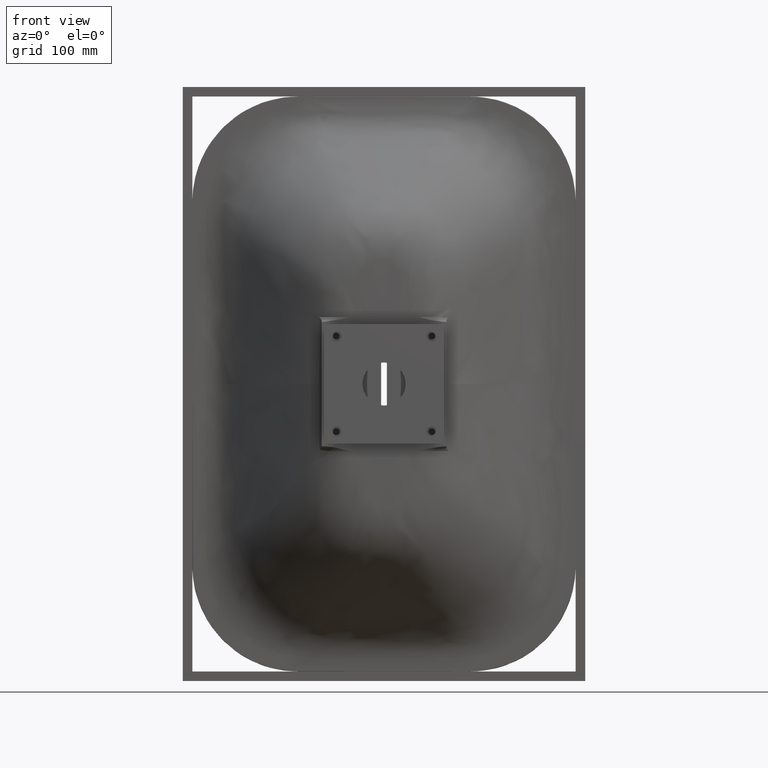
[diagram: clean part render]
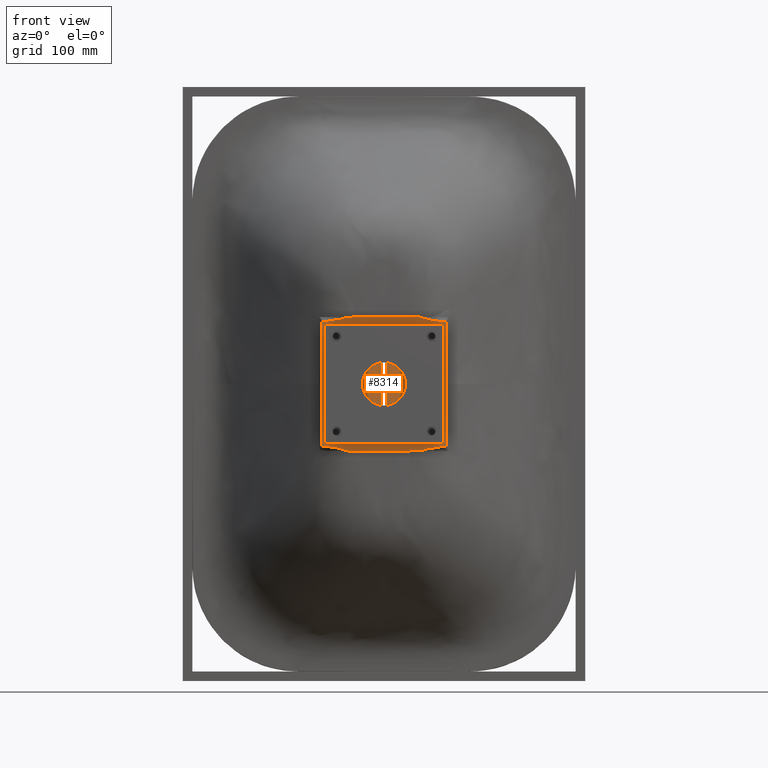
[diagram: same view with one face highlighted and labeled with its STEP entity id]
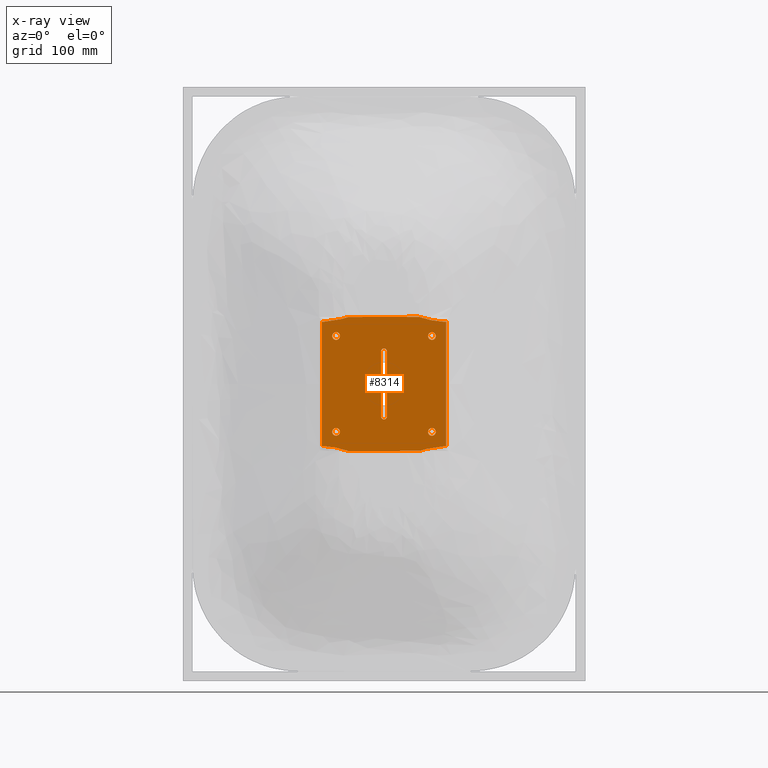
[diagram: x-ray of the same camera — body ghosted, the highlighted face saturated]
A machine part, front view. The second image highlights one B-rep face of the part: STEP entity #8314.
The next image is the same camera in x-ray: the body ghosted, the highlighted face saturated — about 0% of this face is hidden behind the body in this view.
In plain terms, the highlighted planar face has unit normal (0, -1, 0).
Its self-contained STEP definition (entity closure, byte-faithful):
#54 = AXIS2_PLACEMENT_3D ( 'NONE', #365, #197, #181 ) ;
#76 = AXIS2_PLACEMENT_3D ( 'NONE', #13643, #13557, #10048 ) ;
#181 = DIRECTION ( 'NONE',  ( 0.0000000000000000000, -0.0000000000000000000, -1.000000000000000000 ) ) ;
#197 = DIRECTION ( 'NONE',  ( 0.0000000000000000000, -1.000000000000000000, 0.0000000000000000000 ) ) ;
#222 = PLANE ( 'NONE',  #54 ) ;
#241 = CARTESIAN_POINT ( 'NONE',  ( -39.99078647646289400, -3.156900734069142400E-009, -69.06884724761614800 ) ) ;
#281 = CARTESIAN_POINT ( 'NONE',  ( 36.61372547699500800, 3.299525143714644000E-006, 69.99999507600661300 ) ) ;
#328 = CARTESIAN_POINT ( 'NONE',  ( -55.11310534505089000, -3.269194331064117000E-005, -65.51429491886384000 ) ) ;
#365 = CARTESIAN_POINT ( 'NONE',  ( 0.0000000000000000000, 0.0000000000000000000, 0.0000000000000000000 ) ) ;
#369 = ORIENTED_EDGE ( 'NONE', *, *, #2158, .F. ) ;
#460 = CARTESIAN_POINT ( 'NONE',  ( 49.99999999999998600, 0.0000000000000000000, -54.00000000000002100 ) ) ;
#559 = CARTESIAN_POINT ( 'NONE',  ( -36.99814699860650800, 2.085230428744020400E-006, -69.99999985190019900 ) ) ;
#577 = CARTESIAN_POINT ( 'NONE',  ( -42.77269604281767100, 3.549234505501083800E-007, -68.25608667704042900 ) ) ;
#638 = CARTESIAN_POINT ( 'NONE',  ( -50.00000000000001400, 0.0000000000000000000, -54.00000000000000700 ) ) ;
#692 = CARTESIAN_POINT ( 'NONE',  ( -50.00000000000001400, 0.0000000000000000000, -50.00000000000000000 ) ) ;
#793 = ORIENTED_EDGE ( 'NONE', *, *, #15497, .F. ) ;
#1004 = CARTESIAN_POINT ( 'NONE',  ( -37.06669785836086100, -2.015864615178125300E-005, -69.97652567457758700 ) ) ;
#1059 = CARTESIAN_POINT ( 'NONE',  ( -37.00208496937875700, -3.858698589018496300E-013, -69.99543340604961400 ) ) ;
#1266 = CARTESIAN_POINT ( 'NONE',  ( -49.08189172541931100, -1.991995671634889900E-016, -66.64077569637314000 ) ) ;
#1345 = CARTESIAN_POINT ( 'NONE',  ( -54.79992447035019900, -0.0002663473022722222800, -65.56014822356949900 ) ) ;
#1417 = EDGE_CURVE ( 'NONE', #3611, #11997, #1705, .T. ) ;
#1699 = VECTOR ( 'NONE', #4787, 1000.000000000000000 ) ;
#1705 = LINE ( 'NONE', #13508, #8074 ) ;
#1719 = CARTESIAN_POINT ( 'NONE',  ( -61.53402744077449400, 0.0000000000000000000, -65.00000000000000000 ) ) ;
#1726 = EDGE_LOOP ( 'NONE', ( #11113, #11554 ) ) ;
#1821 = ORIENTED_EDGE ( 'NONE', *, *, #6616, .T. ) ;
#1858 = B_SPLINE_CURVE_WITH_KNOTS ( 'NONE', 3,
 ( #16316, #16336, #16300, #16279, #16275, #16232, #16228, #16208, #16202, #16185, #16166, #16143, #16139, #16118, #16099, #16082, #16078, #16055, #16037, #16014, #16012, #15990, #15971, #15950, #15945, #15925, #15904, #15881, #15878, #15861, #15843, #15834, #15815, #15813, #15790, #15766, #15751, #15748, #15733, #15712, #15695, #15693, #15670, #15646, #15631, #15627, #15605, #15584, #15567, #15565, #15545, #15527, #15510, #15508, #15488, #15469, #15455, #15454, #15438, #15413, #15402, #15401, #15385, #15381, #15359, #15348, #15345, #15327, #15323, #15301, #15288, #15287, #15270, #15266, #15242, #15231, #15230, #15211, #15207, #15181, #15170, #15152, #15149, #15124, #15113, #15110, #15087, #15083, #15047, #15046, #15028, #15024, #15004, #14989, #14985, #14964, #14960, #14941, #14926, #14922, #14900, #14897, #14873, #14856, #14852, #14831, #14826, #14785, #14764, #14759, #14733, #14712, #14688, #14684, #14663, #14645, #14628, #14624, #14608, #14588, #14559, #14556, #14534, #14512, #14507, #14492, #14488, #14470, #14450, #14445, #14426, #14424, #14405, #14382, #14375, #14357, #14354, #14334, #14306, #14290, #14287, #14271, #14247, #14229, #14227, #14202, #14173, #14150, #14147, #14123, #14100, #14086, #14085, #14067, #14043, #14024, #14004, #13981 ),
 .UNSPECIFIED., .F., .F.,
 ( 4, 2, 2, 2, 1, 1, 1, 2, 2, 2, 2, 1, 1, 1, 1, 1, 2, 2, 2, 2, 2, 1, 1, 1, 1, 1, 2, 2, 2, 2, 1, 1, 1, 1, 1, 1, 2, 2, 2, 2, 1, 1, 1, 1, 2, 2, 2, 2, 1, 1, 1, 1, 1, 1, 2, 2, 1, 2, 2, 2, 2, 2, 1, 2, 2, 2, 2, 1, 1, 1, 1, 1, 1, 2, 2, 1, 1, 1, 1, 1, 1, 1, 1, 2, 2, 1, 1, 1, 1, 1, 1, 1, 1, 1, 1, 2, 2, 2, 2, 1, 1, 1, 1, 1, 1, 1, 1, 1, 2, 2, 4 ),
 ( 0.0000000000000000000, 0.03124999999969084100, 0.04687499999953634300, 0.05468749999945912000, 0.05859374999942042200, 0.06054687499940104900, 0.06152343749939127200, 0.06201171874938629600, 0.06249999999938132800, 0.07812499999921879200, 0.08593749999913750900, 0.08984374999909683400, 0.09179687499907648900, 0.09277343749906631600, 0.09326171874906120900, 0.09350585937405862800, 0.09362792968655736500, 0.09374999999905611600, 0.1093749999988978000, 0.1171874999988185600, 0.1210937499987789400, 0.1230468749987591500, 0.1240234374987491300, 0.1245117187487440900, 0.1247558593737415600, 0.1248779296862402700, 0.1249389648424896500, 0.1249999999987390400, 0.1406249999986077800, 0.1484374999985420800, 0.1523437499985091400, 0.1542968749984927300, 0.1552734374984845200, 0.1557617187484803800, 0.1560058593734782700, 0.1561279296859771900, 0.1561889648422266100, 0.1562499999984760200, 0.1718749999983419400, 0.1796874999982749600, 0.1835937499982416300, 0.1855468749982248600, 0.1865234374982164800, 0.1870117187482121500, 0.1872558593732101300, 0.1874999999982081000, 0.2187499999979608500, 0.2343749999978374000, 0.2421874999977755800, 0.2460937499977448600, 0.2480468749977298400, 0.2490234374977221000, 0.2495117187477180800, 0.2497558593727160800, 0.2498779296852149100, 0.2499999999977137500, 0.2519531249977199900, 0.2529296874977239900, 0.2539062499977279300, 0.2578124999977409200, 0.2656249999977668400, 0.2734374999977927700, 0.2773437499978060300, 0.2792968749978127500, 0.2812499999978193600, 0.2851562499978331800, 0.2871093749978403400, 0.2890624999978474400, 0.2968749999978758100, 0.3046874999979040700, 0.3085937499979180500, 0.3105468749979250500, 0.3115234374979285500, 0.3120117187479303200, 0.3124999999979321000, 0.3437499999980410100, 0.3593749999980956300, 0.3671874999981228900, 0.3710937499981365500, 0.3730468749981434300, 0.3740234374981469300, 0.3745117187481486500, 0.3747558593731494800, 0.3748779296856498700, 0.3749999999981502600, 0.4374999999983467700, 0.4687499999984449700, 0.4843749999984940900, 0.4921874999985187400, 0.4960937499985310100, 0.4980468749985371700, 0.4990234374985402200, 0.4995117187485417800, 0.4997558593735425000, 0.4998779296860429400, 0.4999389648422931700, 0.4999999999985433300, 0.6249999999988590200, 0.6874999999990167900, 0.7187499999990958300, 0.7343749999991352500, 0.7421874999991550100, 0.7460937499991648900, 0.7480468749991697800, 0.7490234374991722200, 0.7495117187491735500, 0.7497558593741742200, 0.7498779296866745500, 0.7499389648429247700, 0.7499999999991748800, 0.9999999999999814600 ),
 .UNSPECIFIED. ) ;
#1877 = VERTEX_POINT ( 'NONE', #9552 ) ;
#1997 = DIRECTION ( 'NONE',  ( 0.0000000000000000000, 0.0000000000000000000, 1.000000000000000000 ) ) ;
#2041 = CARTESIAN_POINT ( 'NONE',  ( -48.49395073350989800, 0.0001001138088728716200, -66.77449584554113900 ) ) ;
#2158 = EDGE_CURVE ( 'NONE', #11997, #5659, #4597, .T. ) ;
#2285 = CARTESIAN_POINT ( 'NONE',  ( -39.99649257688605500, 4.044975659536482400E-015, -69.06712917802605000 ) ) ;
#2320 = CARTESIAN_POINT ( 'NONE',  ( -37.69615324336795900, -4.950997154841781700E-007, -69.78161426692572900 ) ) ;
#2372 = CARTESIAN_POINT ( 'NONE',  ( -37.25452822520542600, -2.353506581001982200E-005, -69.91922199664821800 ) ) ;
#2376 = EDGE_CURVE ( 'NONE', #16365, #16548, #7868, .T. ) ;
#2435 = EDGE_LOOP ( 'NONE', ( #10088, #11575 ) ) ;
#2567 = DIRECTION ( 'NONE',  ( 0.0000000000000000000, 0.0000000000000000000, 1.000000000000000000 ) ) ;
#2584 = DIRECTION ( 'NONE',  ( 0.0000000000000000000, 1.000000000000000000, 0.0000000000000000000 ) ) ;
#2600 = CARTESIAN_POINT ( 'NONE',  ( -50.43113996412405700, 3.753767677919421700E-016, -66.33837999399121100 ) ) ;
#2601 = CARTESIAN_POINT ( 'NONE',  ( -9.265424952491867700E-015, 0.0000000000000000000, -34.00000000000000000 ) ) ;
#2886 = CIRCLE ( 'NONE', #16067, 4.000000000000003600 ) ;
#2904 = VERTEX_POINT ( 'NONE', #9916 ) ;
#2952 = DIRECTION ( 'NONE',  ( -1.000000000000000000, 0.0000000000000000000, 0.0000000000000000000 ) ) ;
#2994 = VERTEX_POINT ( 'NONE', #9932 ) ;
#3067 = EDGE_CURVE ( 'NONE', #5659, #13253, #8759, .T. ) ;
#3087 = CARTESIAN_POINT ( 'NONE',  ( -40.44420022732045100, 3.972135639257378900E-015, -68.93234279490587800 ) ) ;
#3114 = CARTESIAN_POINT ( 'NONE',  ( 65.00000000000000000, 0.0000000000000000000, -65.00000000000000000 ) ) ;
#3255 = EDGE_CURVE ( 'NONE', #16436, #6500, #13877, .T. ) ;
#3264 = EDGE_LOOP ( 'NONE', ( #4997, #14972, #14514, #11515, #6440, #369, #4031, #793, #16613, #5193 ) ) ;
#3321 = CIRCLE ( 'NONE', #14775, 4.000000000000003600 ) ;
#3399 = CIRCLE ( 'NONE', #13404, 4.000000000000003600 ) ;
#3611 = VERTEX_POINT ( 'NONE', #17832 ) ;
#3728 = CARTESIAN_POINT ( 'NONE',  ( -37.54695810903916700, -6.429411343565940800E-006, -69.82847542642241500 ) ) ;
#3779 = ORIENTED_EDGE ( 'NONE', *, *, #7650, .T. ) ;
#3887 = CIRCLE ( 'NONE', #4750, 4.000000000000003600 ) ;
#3919 = DIRECTION ( 'NONE',  ( 0.0000000000000000000, 0.0000000000000000000, 1.000000000000000000 ) ) ;
#3922 = DIRECTION ( 'NONE',  ( 0.0000000000000000000, 1.000000000000000000, 0.0000000000000000000 ) ) ;
#3937 = CARTESIAN_POINT ( 'NONE',  ( -51.60864099711121600, -0.002643289508399992700, -66.10268734862107500 ) ) ;
#3938 = CARTESIAN_POINT ( 'NONE',  ( 1.155357063301313700E-014, 0.0000000000000000000, 34.00000000000000000 ) ) ;
#3957 = CARTESIAN_POINT ( 'NONE',  ( -54.28778210547049100, -0.0008896354884887533000, -65.63810337637744400 ) ) ;
#4028 = CARTESIAN_POINT ( 'NONE',  ( -3.000000000000009300, 0.0000000000000000000, -34.00000000000000000 ) ) ;
#4031 = ORIENTED_EDGE ( 'NONE', *, *, #1417, .F. ) ;
#4099 = ORIENTED_EDGE ( 'NONE', *, *, #16453, .T. ) ;
#4126 = FACE_OUTER_BOUND ( 'NONE', #3264, .T. ) ;
#4330 = B_SPLINE_CURVE_WITH_KNOTS ( 'NONE', 3,
 ( #14729, #14607, #14662, #14754, #14469, #14303, #14333, #14423, #14439, #14464, #14270, #14197, #14169, #14003, #13945, #13941, #14243, #14533, #14555, #14575, #17551, #18316, #11623, #13958, #13845, #13883, #13921, #13900, #13840, #13828, #13823, #13783, #13770, #13733, #13729, #13766, #13566, #13653, #13715, #13605, #14066, #14122, #14063, #13669, #13276, #13302, #13325, #13344, #13392, #13453, #13501, #13526, #13541, #13588, #13111, #12687, #12666, #13091, #11587, #11559, #11650, #10622, #10347, #5801, #9977, #12292, #12945, #10342, #10275, #14145 ),
 .UNSPECIFIED., .F., .F.,
 ( 4, 2, 2, 1, 2, 2, 1, 1, 2, 2, 2, 1, 1, 1, 1, 1, 2, 2, 2, 2, 1, 1, 1, 1, 1, 2, 2, 2, 2, 2, 2, 2, 2, 2, 2, 1, 1, 1, 1, 1, 2, 2, 2, 4 ),
 ( 0.0000000000000000000, 0.03125000000000992300, 0.04687500000001528600, 0.05468750000001815200, 0.05859375000001988000, 0.06054687500002093500, 0.06152343750002145500, 0.06201171875002154500, 0.06225585937502187100, 0.06250000000002219100, 0.09375000000001032500, 0.1093750000000046200, 0.1171875000000020000, 0.1210937500000003500, 0.1230468749999997100, 0.1240234374999994000, 0.1245117187499995700, 0.1249999999999997400, 0.1874999999999404600, 0.2187499999999104300, 0.2343749999998954200, 0.2421874999998882800, 0.2460937499998849000, 0.2480468749998832300, 0.2490234374998825400, 0.2495117187498821800, 0.2499999999998818400, 0.3749999999998588900, 0.4374999999998474000, 0.4687499999998415200, 0.4843749999998384600, 0.4999999999998353500, 0.6249999999998089300, 0.6874999999997960500, 0.7187499999997896100, 0.7343749999997857300, 0.7421874999997839500, 0.7460937499997822900, 0.7480468749997814000, 0.7490234374997816200, 0.7495117187497816200, 0.7499999999997815100, 0.8749999999998907500, 1.000000000000000000 ),
 .UNSPECIFIED. ) ;
#4342 = LINE ( 'NONE', #4392, #15033 ) ;
#4392 = CARTESIAN_POINT ( 'NONE',  ( -65.00000000000000000, 0.0000000000000000000, -65.00000000000000000 ) ) ;
#4570 = CARTESIAN_POINT ( 'NONE',  ( -55.26915713597834700, -3.810459438197098900E-008, -65.49200290823340300 ) ) ;
#4597 = LINE ( 'NONE', #7435, #17530 ) ;
#4716 = VERTEX_POINT ( 'NONE', #7986 ) ;
#4747 = CARTESIAN_POINT ( 'NONE',  ( -39.98162566296231500, -1.546665183305815100E-008, -69.07160598031377700 ) ) ;
#4750 = AXIS2_PLACEMENT_3D ( 'NONE', #13771, #13751, #13737 ) ;
#4787 = DIRECTION ( 'NONE',  ( 1.000000000000000000, -0.0000000000000000000, -0.0000000000000000000 ) ) ;
#4997 = ORIENTED_EDGE ( 'NONE', *, *, #16592, .F. ) ;
#5022 = CARTESIAN_POINT ( 'NONE',  ( -37.47161974475254500, -1.160504620146155100E-005, -69.85197892811031300 ) ) ;
#5077 = CARTESIAN_POINT ( 'NONE',  ( -37.33228825239038400, -2.033819894047323000E-005, -69.89528487567113800 ) ) ;
#5093 = CARTESIAN_POINT ( 'NONE',  ( -42.98587606778809800, 6.794349234835962000E-009, -68.19596369801611500 ) ) ;
#5119 = VERTEX_POINT ( 'NONE', #13830 ) ;
#5193 = ORIENTED_EDGE ( 'NONE', *, *, #12232, .F. ) ;
#5453 = CIRCLE ( 'NONE', #7444, 2.999999999999999100 ) ;
#5490 = CIRCLE ( 'NONE', #11420, 2.999999999999999100 ) ;
#5586 = CARTESIAN_POINT ( 'NONE',  ( -43.00776508573864700, 4.989393019773512900E-010, -68.18980628691257100 ) ) ;
#5659 = VERTEX_POINT ( 'NONE', #13109 ) ;
#5801 = CARTESIAN_POINT ( 'NONE',  ( 55.17709288002193100, -4.372264379426590700E-008, 65.50524421420388400 ) ) ;
#5908 = ORIENTED_EDGE ( 'NONE', *, *, #17671, .T. ) ;
#5944 = CARTESIAN_POINT ( 'NONE',  ( -42.89421652678417000, 9.984125348561695100E-008, -68.22177988203532100 ) ) ;
#6154 = CARTESIAN_POINT ( 'NONE',  ( -48.79558094323637400, 2.721595713172625200E-005, -66.70544255242829500 ) ) ;
#6232 = VERTEX_POINT ( 'NONE', #18090 ) ;
#6440 = ORIENTED_EDGE ( 'NONE', *, *, #3067, .F. ) ;
#6458 = CARTESIAN_POINT ( 'NONE',  ( -39.96790033201095600, -4.292668615429160800E-008, -69.07573988640007200 ) ) ;
#6500 = VERTEX_POINT ( 'NONE', #7955 ) ;
#6503 = CARTESIAN_POINT ( 'NONE',  ( -39.93598579402586100, -1.666927420454861900E-007, -69.08535630856742700 ) ) ;
#6616 = EDGE_CURVE ( 'NONE', #17192, #16436, #6847, .T. ) ;
#6623 = VERTEX_POINT ( 'NONE', #4028 ) ;
#6639 = CARTESIAN_POINT ( 'NONE',  ( -41.67213107250759000, 1.143557372791880600E-006, -68.57144599619536500 ) ) ;
#6726 = FACE_BOUND ( 'NONE', #10843, .T. ) ;
#6847 = CIRCLE ( 'NONE', #13746, 3.000000000000002700 ) ;
#6989 = CARTESIAN_POINT ( 'NONE',  ( -43.01415178925128700, -7.395446923100213600E-015, -68.18801028185019700 ) ) ;
#7170 = B_SPLINE_CURVE_WITH_KNOTS ( 'NONE', 3,
 ( #18338, #18281, #18280, #18263, #18230, #18228, #18212, #18209, #18187, #18179, #18177, #18161, #18156, #18136, #18125, #18124, #18108, #18105, #18081, #18072, #18071, #18056, #18052, #18030, #18019, #18016, #17998, #17994, #17972, #17960, #17959, #17938, #17934, #17902, #17901, #17877, #17874, #17853, #17840, #17838, #17812, #17810, #17788, #17775, #17772, #17752, #17747, #17727, #17713, #17711, #17693, #17690, #17660, #17656, #17636, #17632, #17597, #17576, #17572, #17552, #17534, #17517, #17512, #17491, #17476, #17457, #17453, #17432, #17412, #17390, #17387, #17370, #17349, #17343, #17323, #17297, #17280, #17272, #17256, #17254, #17232, #17202, #17182, #17177, #17161, #17137, #17121, #17119, #17097, #17076, #17061, #17058, #17037, #17014, #16997, #16996, #16975, #16954, #16935, #16933, #16914, #16893, #16875, #16873, #16852, #16832, #16821, #16820, #16804, #16800, #16780, #16772, #16770, #16754, #16752, #16730, #16719, #16717, #16695, #16692, #16668, #16660, #16657, #16640, #16636, #16619, #16606, #16604, #16584, #16580, #16556, #16545, #16543, #16519, #16516, #16486, #16483, #16458, #16455, #16438 ),
 .UNSPECIFIED., .F., .F.,
 ( 4, 2, 2, 2, 1, 1, 1, 2, 2, 2, 2, 1, 1, 1, 1, 1, 2, 2, 2, 2, 2, 1, 1, 1, 1, 1, 2, 2, 2, 2, 1, 1, 1, 1, 1, 1, 2, 2, 2, 2, 1, 1, 1, 1, 2, 2, 2, 2, 1, 1, 1, 1, 1, 1, 2, 2, 2, 2, 2, 2, 1, 2, 1, 1, 1, 1, 1, 1, 1, 1, 1, 1, 2, 2, 2, 2, 1, 1, 1, 1, 1, 1, 1, 1, 1, 2, 2, 1, 1, 1, 1, 1, 1, 1, 1, 1, 2, 2, 4 ),
 ( 0.0000000000000000000, 0.03125000000031027300, 0.04687500000046541900, 0.05468750000054308600, 0.05859375000058191600, 0.06054687500060122700, 0.06152343750061088600, 0.06201171875061570900, 0.06250000000062053100, 0.07812500000077218800, 0.08593750000084812700, 0.08984375000088600000, 0.09179687500090486000, 0.09277343750091436600, 0.09326171875091908400, 0.09350585937592145700, 0.09362792968842265100, 0.09375000000092381700, 0.1093750000010914600, 0.1171875000011752300, 0.1210937500012170700, 0.1230468750012380100, 0.1240234375012483900, 0.1245117187512535100, 0.1247558593762561200, 0.1248779296887574700, 0.1249389648450081900, 0.1250000000012589400, 0.1406250000014629700, 0.1484375000015649100, 0.1523437500016159300, 0.1542968750016415500, 0.1552734375016544300, 0.1557617187516609800, 0.1560058593766642200, 0.1561279296891658300, 0.1561889648454166700, 0.1562500000016675000, 0.1718750000018899600, 0.1796875000020010400, 0.1835937500020566000, 0.1855468750020844700, 0.1865234375020984000, 0.1870117187521054500, 0.1872558593771091200, 0.1875000000021127300, 0.2187500000025774900, 0.2343750000028097800, 0.2421875000029261300, 0.2460937500029845600, 0.2480468750030135100, 0.2490234375030279900, 0.2495117187530352400, 0.2497558593780389600, 0.2498779296905409600, 0.2500000000030429500, 0.2812500000029182800, 0.2890625000028866900, 0.2929687500028706500, 0.2968750000028546100, 0.3125000000027897700, 0.3750000000025308600, 0.4375000000022719600, 0.4687500000021425600, 0.4843750000020778400, 0.4921875000020455300, 0.4960937500020293200, 0.4980468750020212200, 0.4990234375020172200, 0.4995117187520152800, 0.4997558593770142200, 0.4998779296895137200, 0.4999389648457635000, 0.5000000000020132800, 0.6250000000015012400, 0.6875000000012453400, 0.7187500000011174400, 0.7343750000010533800, 0.7421875000010214100, 0.7460937500010053100, 0.7480468750009973100, 0.7490234375009934300, 0.7495117187509913200, 0.7497558593759903200, 0.7498779296884898700, 0.7499389648447397600, 0.7500000000009894300, 0.8125000000007265300, 0.8437500000005948600, 0.8593750000005290200, 0.8671875000004961600, 0.8710937500004797300, 0.8730468750004714000, 0.8740234375004671800, 0.8745117187504651800, 0.8747558593754641800, 0.8748779296879637400, 0.8750000000004631900, 0.9999999999999948900 ),
 .UNSPECIFIED. ) ;
#7217 = VECTOR ( 'NONE', #15876, 1000.000000000000000 ) ;
#7363 = EDGE_CURVE ( 'NONE', #4716, #15987, #8084, .T. ) ;
#7422 = DIRECTION ( 'NONE',  ( 0.0000000000000000000, 1.000000000000000000, 0.0000000000000000000 ) ) ;
#7435 = CARTESIAN_POINT ( 'NONE',  ( 65.00000000000000000, 0.0000000000000000000, -65.00000000000000000 ) ) ;
#7444 = AXIS2_PLACEMENT_3D ( 'NONE', #8816, #7422, #17662 ) ;
#7650 = EDGE_CURVE ( 'NONE', #2994, #6623, #5490, .T. ) ;
#7757 = CARTESIAN_POINT ( 'NONE',  ( -39.87260172786087500, -6.276092876101689200E-007, -69.10447165672083300 ) ) ;
#7810 = CARTESIAN_POINT ( 'NONE',  ( -55.19449227630103400, -8.353688287920466200E-006, -65.50262990611587100 ) ) ;
#7818 = CARTESIAN_POINT ( 'NONE',  ( -39.74761421400074100, -2.212083504774140100E-006, -69.14223191364767700 ) ) ;
#7828 = CIRCLE ( 'NONE', #10457, 4.000000000000003600 ) ;
#7868 = CIRCLE ( 'NONE', #12784, 4.000000000000003600 ) ;
#7875 = CARTESIAN_POINT ( 'NONE',  ( -39.50476623498909800, -6.690151766993923400E-006, -69.21586758011869700 ) ) ;
#7955 = CARTESIAN_POINT ( 'NONE',  ( 2.999999999999991100, 0.0000000000000000000, -34.00000000000000000 ) ) ;
#7986 = CARTESIAN_POINT ( 'NONE',  ( -61.53402744077449400, 0.0000000000000000000, -65.00000000000000000 ) ) ;
#7995 = CARTESIAN_POINT ( 'NONE',  ( -42.53202994389954500, 1.099574299156064000E-006, -68.32429747886054400 ) ) ;
#8022 = DIRECTION ( 'NONE',  ( 0.0000000000000000000, 0.0000000000000000000, 1.000000000000000000 ) ) ;
#8039 = DIRECTION ( 'NONE',  ( 0.0000000000000000000, 1.000000000000000000, 0.0000000000000000000 ) ) ;
#8041 = CARTESIAN_POINT ( 'NONE',  ( 49.99999999999998600, 0.0000000000000000000, -50.00000000000001400 ) ) ;
#8074 = VECTOR ( 'NONE', #13550, 1000.000000000000000 ) ;
#8084 = LINE ( 'NONE', #3114, #15984 ) ;
#8242 = FACE_BOUND ( 'NONE', #1726, .T. ) ;
#8314 = ADVANCED_FACE ( 'NONE', ( #17685, #18202, #8242, #11937, #6726, #4126 ), #222, .T. ) ;
#8380 = CARTESIAN_POINT ( 'NONE',  ( -43.62486522776895700, -8.241348232475538600E-015, -68.01629157956912800 ) ) ;
#8435 = EDGE_CURVE ( 'NONE', #13253, #14537, #7170, .T. ) ;
#8498 = EDGE_CURVE ( 'NONE', #15299, #14031, #1858, .T. ) ;
#8525 = EDGE_CURVE ( 'NONE', #16548, #16365, #3887, .T. ) ;
#8538 = EDGE_LOOP ( 'NONE', ( #4099, #18304 ) ) ;
#8668 = CARTESIAN_POINT ( 'NONE',  ( -2.999999999999988500, 0.0000000000000000000, 34.00000000000000000 ) ) ;
#8759 = LINE ( 'NONE', #15810, #7217 ) ;
#8798 = CARTESIAN_POINT ( 'NONE',  ( -42.32982066197111200, 1.602894590594555300E-006, -68.38204451307376500 ) ) ;
#8816 = CARTESIAN_POINT ( 'NONE',  ( -9.265424952491867700E-015, 0.0000000000000000000, -34.00000000000000000 ) ) ;
#8918 = CARTESIAN_POINT ( 'NONE',  ( -55.23480501254572100, -2.111109229054137600E-006, -65.49688335332774600 ) ) ;
#9131 = CARTESIAN_POINT ( 'NONE',  ( -56.52486403046685800, 3.062377034728842000E-016, -65.31397317177960800 ) ) ;
#9215 = CARTESIAN_POINT ( 'NONE',  ( -39.30884410239281100, -8.969331965187220200E-006, -69.27574452009341100 ) ) ;
#9274 = CARTESIAN_POINT ( 'NONE',  ( -38.93334964471124200, -8.492655101163707400E-006, -69.39117747164931400 ) ) ;
#9327 = CARTESIAN_POINT ( 'NONE',  ( -38.70482070563773600, 1.982253414099897100E-015, -69.46236728633954300 ) ) ;
#9539 = EDGE_CURVE ( 'NONE', #6623, #17192, #10660, .T. ) ;
#9548 = EDGE_LOOP ( 'NONE', ( #5908, #10807 ) ) ;
#9552 = CARTESIAN_POINT ( 'NONE',  ( 49.99999999999998600, 0.0000000000000000000, 46.00000000000000000 ) ) ;
#9577 = CARTESIAN_POINT ( 'NONE',  ( -53.62846187056276600, -0.001740003808141729500, -65.74351532365071200 ) ) ;
#9617 = CIRCLE ( 'NONE', #16690, 4.000000000000003600 ) ;
#9777 = CARTESIAN_POINT ( 'NONE',  ( 3.000000000000012000, 0.0000000000000000000, 34.00000000000000000 ) ) ;
#9834 = CARTESIAN_POINT ( 'NONE',  ( -44.43815166540124300, 0.0007630082967548768800, -67.79233904337768000 ) ) ;
#9916 = CARTESIAN_POINT ( 'NONE',  ( -65.00000000000000000, 0.0000000000000000000, 65.00000000000000000 ) ) ;
#9932 = CARTESIAN_POINT ( 'NONE',  ( -9.265424952491867700E-015, 0.0000000000000000000, -37.00000000000000700 ) ) ;
#9977 = CARTESIAN_POINT ( 'NONE',  ( 55.17768313106218200, -1.725525070853265600E-015, 65.50515946372361500 ) ) ;
#9982 = CARTESIAN_POINT ( 'NONE',  ( -50.00000000000001400, 0.0000000000000000000, -46.00000000000000000 ) ) ;
#10035 = CARTESIAN_POINT ( 'NONE',  ( -55.25486621778286200, -5.306192059503576800E-007, -65.49403140957136300 ) ) ;
#10048 = DIRECTION ( 'NONE',  ( 0.0000000000000000000, 0.0000000000000000000, 1.000000000000000000 ) ) ;
#10088 = ORIENTED_EDGE ( 'NONE', *, *, #10963, .T. ) ;
#10275 = CARTESIAN_POINT ( 'NONE',  ( 60.68618706850274700, -4.517861982417614600E-016, 65.00000048738226600 ) ) ;
#10342 = CARTESIAN_POINT ( 'NONE',  ( 59.73467887542839300, -0.001189854596492100500, 65.03400624148505900 ) ) ;
#10347 = CARTESIAN_POINT ( 'NONE',  ( 55.17152657322612400, -2.178097364132262300E-007, 65.50604253514278200 ) ) ;
#10413 = DIRECTION ( 'NONE',  ( 0.0000000000000000000, 0.0000000000000000000, 1.000000000000000000 ) ) ;
#10417 = DIRECTION ( 'NONE',  ( 0.0000000000000000000, 1.000000000000000000, 0.0000000000000000000 ) ) ;
#10457 = AXIS2_PLACEMENT_3D ( 'NONE', #12772, #12735, #12709 ) ;
#10459 = CARTESIAN_POINT ( 'NONE',  ( -50.00000000000001400, 0.0000000000000000000, 50.00000000000000000 ) ) ;
#10598 = VECTOR ( 'NONE', #16621, 1000.000000000000000 ) ;
#10622 = CARTESIAN_POINT ( 'NONE',  ( 55.16316956658243200, -6.089033625549879800E-007, 65.50724160505814100 ) ) ;
#10660 = LINE ( 'NONE', #11020, #16685 ) ;
#10681 = CARTESIAN_POINT ( 'NONE',  ( -38.49172708726664600, 1.812223449283578500E-015, -69.52990149834984400 ) ) ;
#10736 = CARTESIAN_POINT ( 'NONE',  ( -38.48283293649507900, -2.395638670841514600E-007, -69.53272012861225400 ) ) ;
#10807 = ORIENTED_EDGE ( 'NONE', *, *, #15555, .T. ) ;
#10843 = EDGE_LOOP ( 'NONE', ( #14619, #1821, #15177, #15111, #3779 ) ) ;
#10923 = DIRECTION ( 'NONE',  ( -0.0000000000000000000, -0.0000000000000000000, -1.000000000000000000 ) ) ;
#10963 = EDGE_CURVE ( 'NONE', #13960, #6232, #3399, .T. ) ;
#10997 = DIRECTION ( 'NONE',  ( 3.061276722312012500E-016, -0.0000000000000000000, 1.000000000000000000 ) ) ;
#11020 = CARTESIAN_POINT ( 'NONE',  ( -3.000000000000009300, 0.0000000000000000000, -34.00000000000000000 ) ) ;
#11113 = ORIENTED_EDGE ( 'NONE', *, *, #8525, .T. ) ;
#11304 = CARTESIAN_POINT ( 'NONE',  ( -57.67090960911109900, -0.001065491002380560800, -65.19008105663650100 ) ) ;
#11420 = AXIS2_PLACEMENT_3D ( 'NONE', #2601, #2584, #2567 ) ;
#11515 = ORIENTED_EDGE ( 'NONE', *, *, #8435, .F. ) ;
#11554 = ORIENTED_EDGE ( 'NONE', *, *, #2376, .T. ) ;
#11559 = CARTESIAN_POINT ( 'NONE',  ( 55.10430069760088400, -9.588520341430110400E-006, 65.51571325466618100 ) ) ;
#11575 = ORIENTED_EDGE ( 'NONE', *, *, #15918, .T. ) ;
#11587 = CARTESIAN_POINT ( 'NONE',  ( 55.02482243176766700, -3.753655324358690300E-005, 65.52721894507220700 ) ) ;
#11623 = CARTESIAN_POINT ( 'NONE',  ( 39.62369770847360000, -2.330853039619978300E-007, 69.18373075770846000 ) ) ;
#11650 = CARTESIAN_POINT ( 'NONE',  ( 55.14361705616790500, -2.422770868530447700E-006, 65.51005057594703400 ) ) ;
#11827 = CARTESIAN_POINT ( 'NONE',  ( -48.24241050167770300, 0.0002006031000494100400, -66.83323038597912100 ) ) ;
#11937 = FACE_BOUND ( 'NONE', #2435, .T. ) ;
#11997 = VERTEX_POINT ( 'NONE', #15539 ) ;
#12015 = CARTESIAN_POINT ( 'NONE',  ( 49.99999999999998600, 0.0000000000000000000, 54.00000000000000700 ) ) ;
#12176 = CARTESIAN_POINT ( 'NONE',  ( -38.46746944571135200, -8.370098956529069600E-007, -69.53758885541488200 ) ) ;
#12232 = EDGE_CURVE ( 'NONE', #2904, #15299, #13228, .T. ) ;
#12235 = CARTESIAN_POINT ( 'NONE',  ( -38.44441217391873500, -1.660039677161763000E-006, -69.54489582299339600 ) ) ;
#12260 = DIRECTION ( 'NONE',  ( 0.0000000000000000000, 1.000000000000000000, 0.0000000000000000000 ) ) ;
#12292 = CARTESIAN_POINT ( 'NONE',  ( 56.45459006051890300, -2.312223480810936900E-015, 65.32217983872624200 ) ) ;
#12485 = CARTESIAN_POINT ( 'NONE',  ( -49.05844275664988900, 5.272546677904481800E-007, -66.64604021627913300 ) ) ;
#12666 = CARTESIAN_POINT ( 'NONE',  ( 54.71752714725372600, -0.0003062764242079622300, 65.57260888288513500 ) ) ;
#12687 = CARTESIAN_POINT ( 'NONE',  ( 54.41986158720601500, -0.0006906964404730212000, 65.61773194650133700 ) ) ;
#12709 = DIRECTION ( 'NONE',  ( 0.0000000000000000000, 0.0000000000000000000, 1.000000000000000000 ) ) ;
#12735 = DIRECTION ( 'NONE',  ( 0.0000000000000000000, 1.000000000000000000, 0.0000000000000000000 ) ) ;
#12772 = CARTESIAN_POINT ( 'NONE',  ( 49.99999999999998600, 0.0000000000000000000, -50.00000000000001400 ) ) ;
#12784 = AXIS2_PLACEMENT_3D ( 'NONE', #692, #12260, #17494 ) ;
#12938 = EDGE_CURVE ( 'NONE', #14537, #4716, #14581, .T. ) ;
#12945 = CARTESIAN_POINT ( 'NONE',  ( 57.61891659457504000, -0.001166974577532648800, 65.19491269465233100 ) ) ;
#13009 = CARTESIAN_POINT ( 'NONE',  ( -42.99900736046041800, 2.446938113033186000E-009, -68.19226959638545800 ) ) ;
#13021 = CARTESIAN_POINT ( 'NONE',  ( -65.00000000000000000, 0.0000000000000000000, -65.00000000000000000 ) ) ;
#13035 = EDGE_CURVE ( 'NONE', #6500, #2994, #5453, .T. ) ;
#13091 = CARTESIAN_POINT ( 'NONE',  ( 54.86248212913553600, -0.0001436580102669811000, 65.55096280724326600 ) ) ;
#13109 = CARTESIAN_POINT ( 'NONE',  ( 65.00000000000000000, 0.0000000000000000000, -65.00000000000000000 ) ) ;
#13111 = CARTESIAN_POINT ( 'NONE',  ( 54.21107683189788400, -0.001024693105263356800, 65.65025460827710900 ) ) ;
#13228 = LINE ( 'NONE', #14114, #1699 ) ;
#13253 = VERTEX_POINT ( 'NONE', #16547 ) ;
#13276 = CARTESIAN_POINT ( 'NONE',  ( 47.29822591193409700, 0.0004690304940499345400, 67.05891092309407500 ) ) ;
#13302 = CARTESIAN_POINT ( 'NONE',  ( 47.60826672227708700, 0.0003373281663304491100, 66.98344454746596500 ) ) ;
#13325 = CARTESIAN_POINT ( 'NONE',  ( 48.08895992312670800, 0.0001618394381152933600, 66.86910354698225900 ) ) ;
#13344 = CARTESIAN_POINT ( 'NONE',  ( 48.25179635934407700, 0.0001075968857761310400, 66.83080092807256300 ) ) ;
#13392 = CARTESIAN_POINT ( 'NONE',  ( 48.58266793905352900, 2.669452148372679200E-005, 66.75395286385403900 ) ) ;
#13403 = CARTESIAN_POINT ( 'NONE',  ( -48.94843567345458300, 7.089354158726696000E-006, -66.67081207399859000 ) ) ;
#13404 = AXIS2_PLACEMENT_3D ( 'NONE', #8041, #8039, #8022 ) ;
#13453 = CARTESIAN_POINT ( 'NONE',  ( 48.74902096325234900, 1.078842124834221600E-014, 66.71578790147248100 ) ) ;
#13501 = CARTESIAN_POINT ( 'NONE',  ( 50.29981864913315800, 9.656881459484323000E-015, 66.36501548299561600 ) ) ;
#13508 = CARTESIAN_POINT ( 'NONE',  ( 65.00000000000000000, 0.0000000000000000000, 65.00000000000000000 ) ) ;
#13526 = CARTESIAN_POINT ( 'NONE',  ( 51.50907945094397200, -0.003029625758749489200, 66.12163008860596800 ) ) ;
#13541 = CARTESIAN_POINT ( 'NONE',  ( 53.07375946625253200, -0.002603212062911165100, 65.83744964590827900 ) ) ;
#13550 = DIRECTION ( 'NONE',  ( 1.000000000000000000, -0.0000000000000000000, -0.0000000000000000000 ) ) ;
#13557 = DIRECTION ( 'NONE',  ( 0.0000000000000000000, 1.000000000000000000, 0.0000000000000000000 ) ) ;
#13566 = CARTESIAN_POINT ( 'NONE',  ( 42.71785984637308100, 6.383920062340776700E-009, 68.27424396084279600 ) ) ;
#13588 = CARTESIAN_POINT ( 'NONE',  ( 53.55359397276008300, -0.002005671124299761100, 65.75601507572487500 ) ) ;
#13605 = CARTESIAN_POINT ( 'NONE',  ( 42.74585928727768900, 7.520270297102095400E-016, 68.26629371070198700 ) ) ;
#13643 = CARTESIAN_POINT ( 'NONE',  ( 49.99999999999998600, 0.0000000000000000000, 50.00000000000000000 ) ) ;
#13653 = CARTESIAN_POINT ( 'NONE',  ( 42.73100718699427600, 2.298803146583038600E-009, 68.27051036760666100 ) ) ;
#13669 = CARTESIAN_POINT ( 'NONE',  ( 46.39951900271071800, 0.0007781643543709965500, 67.28159132363305200 ) ) ;
#13715 = CARTESIAN_POINT ( 'NONE',  ( 42.73977521070225500, 4.685872675983049500E-010, 68.26802082546584000 ) ) ;
#13729 = CARTESIAN_POINT ( 'NONE',  ( 42.62605855762404200, 9.394582295473251400E-008, 68.30034358508632400 ) ) ;
#13730 = CARTESIAN_POINT ( 'NONE',  ( -38.39052762455114700, -3.106080589772524100E-006, -69.56197230174878100 ) ) ;
#13733 = CARTESIAN_POINT ( 'NONE',  ( 42.50427065948275600, 3.346535636257365900E-007, 68.33504702326196400 ) ) ;
#13737 = DIRECTION ( 'NONE',  ( 0.0000000000000000000, 0.0000000000000000000, 1.000000000000000000 ) ) ;
#13746 = AXIS2_PLACEMENT_3D ( 'NONE', #3938, #3922, #3919 ) ;
#13751 = DIRECTION ( 'NONE',  ( 0.0000000000000000000, 1.000000000000000000, 0.0000000000000000000 ) ) ;
#13766 = CARTESIAN_POINT ( 'NONE',  ( 42.68721558574289100, 2.484059965262402500E-008, 68.28295062188266200 ) ) ;
#13770 = CARTESIAN_POINT ( 'NONE',  ( 42.26280097858317200, 1.041744896610972200E-006, 68.40411568236361000 ) ) ;
#13771 = CARTESIAN_POINT ( 'NONE',  ( -50.00000000000001400, 0.0000000000000000000, -50.00000000000000000 ) ) ;
#13783 = CARTESIAN_POINT ( 'NONE',  ( 42.05944253496379300, 1.532232463344047300E-006, 68.46270982908947600 ) ) ;
#13784 = CARTESIAN_POINT ( 'NONE',  ( -38.28242154363070400, -4.387569832449401800E-006, -69.59623075393389500 ) ) ;
#13823 = CARTESIAN_POINT ( 'NONE',  ( 41.65755988213777500, 1.867447612839615300E-006, 68.57902054434518400 ) ) ;
#13828 = CARTESIAN_POINT ( 'NONE',  ( 41.39608382000817200, 1.162955921372367100E-006, 68.65538866964975300 ) ) ;
#13830 = CARTESIAN_POINT ( 'NONE',  ( -50.00000000000001400, 0.0000000000000000000, 54.00000000000000700 ) ) ;
#13840 = CARTESIAN_POINT ( 'NONE',  ( 40.63109883504738200, -1.281944530777206400E-006, 68.88052031615750100 ) ) ;
#13845 = CARTESIAN_POINT ( 'NONE',  ( 39.67039735195602600, -2.163437721439402600E-008, 69.16958373952712700 ) ) ;
#13877 = LINE ( 'NONE', #16694, #10598 ) ;
#13883 = CARTESIAN_POINT ( 'NONE',  ( 39.67977255375627300, -4.416753538578664000E-009, 69.16674471056956000 ) ) ;
#13900 = CARTESIAN_POINT ( 'NONE',  ( 40.14703451129368300, -2.084857795464513800E-013, 69.02528066035489500 ) ) ;
#13921 = CARTESIAN_POINT ( 'NONE',  ( 39.68558771443256500, -2.075843288678940000E-013, 69.16498399658230800 ) ) ;
#13941 = CARTESIAN_POINT ( 'NONE',  ( 38.16389502649617800, -8.182763072957527000E-016, 69.63441620946524300 ) ) ;
#13945 = CARTESIAN_POINT ( 'NONE',  ( 38.16005443887262100, -7.178858480308815800E-008, 69.63563458369542000 ) ) ;
#13949 = CARTESIAN_POINT ( 'NONE',  ( -60.69554647623475300, 1.330125071474453600E-013, -65.00000012242802000 ) ) ;
#13958 = CARTESIAN_POINT ( 'NONE',  ( 39.65635161567891500, -6.003976960419659100E-008, 69.17383762607283900 ) ) ;
#13960 = VERTEX_POINT ( 'NONE', #460 ) ;
#13981 = CARTESIAN_POINT ( 'NONE',  ( 36.61372547699500800, 3.299525143714644000E-006, 69.99999507600661300 ) ) ;
#14003 = CARTESIAN_POINT ( 'NONE',  ( 38.15460517988646000, -3.562308376202611800E-007, 69.63736140566346900 ) ) ;
#14004 = CARTESIAN_POINT ( 'NONE',  ( 31.21896543429607000, 1.337459657383521700E-006, 69.99999938781920200 ) ) ;
#14020 = CARTESIAN_POINT ( 'NONE',  ( -49.01438169122529600, 2.563066665949597000E-006, -66.65595130071417900 ) ) ;
#14024 = CARTESIAN_POINT ( 'NONE',  ( 24.93838149679497100, 7.967976499432033600E-006, 69.99760572858777200 ) ) ;
#14031 = VERTEX_POINT ( 'NONE', #281 ) ;
#14043 = CARTESIAN_POINT ( 'NONE',  ( 17.77022017687191600, 8.077951086107823900E-007, 69.99282003223486000 ) ) ;
#14063 = CARTESIAN_POINT ( 'NONE',  ( 45.84226859501796300, 0.0008534940801250673900, 67.42501096081436200 ) ) ;
#14066 = CARTESIAN_POINT ( 'NONE',  ( 43.43684026464064400, 2.011526784530879800E-015, 68.07016504571288400 ) ) ;
#14067 = CARTESIAN_POINT ( 'NONE',  ( 17.76608511219632200, 8.036620820658462400E-007, 69.99281727107212700 ) ) ;
#14085 = CARTESIAN_POINT ( 'NONE',  ( 17.76020078523445300, 7.977740422690966200E-007, 69.99281334066564900 ) ) ;
#14086 = CARTESIAN_POINT ( 'NONE',  ( 17.75137464473674200, 7.889346335412913600E-007, 69.99280744390993900 ) ) ;
#14100 = CARTESIAN_POINT ( 'NONE',  ( 17.73078276652318100, 7.682578540507983900E-007, 69.99279367679170600 ) ) ;
#14114 = CARTESIAN_POINT ( 'NONE',  ( 65.00000000000000000, 0.0000000000000000000, 65.00000000000000000 ) ) ;
#14122 = CARTESIAN_POINT ( 'NONE',  ( 44.29743890949608000, 0.0006430727172126256200, 67.83154336222025900 ) ) ;
#14123 = CARTESIAN_POINT ( 'NONE',  ( 17.68960880855588200, 7.266980810990196200E-007, 69.99276611046852300 ) ) ;
#14136 = CARTESIAN_POINT ( 'NONE',  ( -42.95527345431511900, 2.642510853952304000E-008, -68.20457721298423300 ) ) ;
#14145 = CARTESIAN_POINT ( 'NONE',  ( 61.53397873794678200, 0.0000000000000000000, 65.00000000000000000 ) ) ;
#14147 = CARTESIAN_POINT ( 'NONE',  ( 17.60730008645834800, 6.427515070404266300E-007, 69.99271084947524500 ) ) ;
#14150 = CARTESIAN_POINT ( 'NONE',  ( 17.44283941761154100, 4.715329576924434700E-007, 69.99259981410094200 ) ) ;
#14169 = CARTESIAN_POINT ( 'NONE',  ( 38.14643956623943700, -9.941963849135578100E-007, 69.63994682567710000 ) ) ;
#14173 = CARTESIAN_POINT ( 'NONE',  ( 17.11454518147272500, 1.156507984351173300E-007, 69.99237568974497500 ) ) ;
#14197 = CARTESIAN_POINT ( 'NONE',  ( 38.12744439518420600, -3.933610405144731100E-006, 69.64594579335424400 ) ) ;
#14202 = CARTESIAN_POINT ( 'NONE',  ( 16.46046511272583500, -6.509620166436882400E-007, 69.99191922754906200 ) ) ;
#14227 = CARTESIAN_POINT ( 'NONE',  ( 15.16233859309429900, -2.414144171969310300E-006, 69.99097344868492600 ) ) ;
#14229 = CARTESIAN_POINT ( 'NONE',  ( 12.60621954448578900, -6.997445543107941500E-006, 69.98895059168869200 ) ) ;
#14243 = CARTESIAN_POINT ( 'NONE',  ( 38.37248106331370700, -1.055601575625069500E-015, 69.56820551133796500 ) ) ;
#14247 = CARTESIAN_POINT ( 'NONE',  ( 10.48406377929424900, -1.281649237235783300E-005, 69.98699105857402000 ) ) ;
#14270 = CARTESIAN_POINT ( 'NONE',  ( 38.11126213662683400, -8.843834247329107200E-006, 69.65103006985928900 ) ) ;
#14271 = CARTESIAN_POINT ( 'NONE',  ( 6.331487609456859300, -2.708281396850654900E-005, 69.98277175825006700 ) ) ;
#14287 = CARTESIAN_POINT ( 'NONE',  ( 3.685420924490403000, -4.052860689897228900E-005, 69.97955828646712500 ) ) ;
#14290 = CARTESIAN_POINT ( 'NONE',  ( -3.885839378037673900, -9.292394360218573200E-005, 69.96871588326699500 ) ) ;
#14303 = CARTESIAN_POINT ( 'NONE',  ( 37.75126499499081900, -0.0001280793927720355900, 69.75947469826280700 ) ) ;
#14306 = CARTESIAN_POINT ( 'NONE',  ( -8.444085748541198200, -0.0001469308512074529200, 69.95988524755618700 ) ) ;
#14317 = CARTESIAN_POINT ( 'NONE',  ( -45.96129171624141900, 0.001030755774126435200, -67.39410261503078900 ) ) ;
#14333 = CARTESIAN_POINT ( 'NONE',  ( 37.86961485077194600, -0.0001324483142329309800, 69.72522807349759000 ) ) ;
#14334 = CARTESIAN_POINT ( 'NONE',  ( -12.51506292035123400, -0.0002507552316283727000, 69.94944733406488500 ) ) ;
#14354 = CARTESIAN_POINT ( 'NONE',  ( -12.51996742007774600, -0.0002508803589165154200, 69.94943475696823000 ) ) ;
#14357 = CARTESIAN_POINT ( 'NONE',  ( -12.52685768020797900, -0.0002510562655766999400, 69.94941708227885600 ) ) ;
#14375 = CARTESIAN_POINT ( 'NONE',  ( -12.53719201910934600, -0.0002513202342074515800, 69.94939056680216500 ) ) ;
#14382 = CARTESIAN_POINT ( 'NONE',  ( -12.56129811748799500, -0.0002519369219355071800, 69.94932867325749700 ) ) ;
#14405 = CARTESIAN_POINT ( 'NONE',  ( -12.60948087801302500, -0.0002531733451427055200, 69.94920478977356000 ) ) ;
#14423 = CARTESIAN_POINT ( 'NONE',  ( 37.99431394717738200, -7.770586681957486100E-005, 69.68731683904481100 ) ) ;
#14424 = CARTESIAN_POINT ( 'NONE',  ( -12.70572865412826300, -0.0002556584141995542400, 69.94895663722607500 ) ) ;
#14426 = CARTESIAN_POINT ( 'NONE',  ( -12.89775322657501600, -0.0002606776960749132200, 69.94845878981934100 ) ) ;
#14439 = CARTESIAN_POINT ( 'NONE',  ( 38.05771881213328100, -3.525400504015760000E-005, 69.66774723392691700 ) ) ;
#14445 = CARTESIAN_POINT ( 'NONE',  ( -13.27991844982338400, -0.0002709147554377687900, 69.94745692639634200 ) ) ;
#14450 = CARTESIAN_POINT ( 'NONE',  ( -14.03671323070892100, -0.0002922008050609754000, 69.94542851878826200 ) ) ;
#14464 = CARTESIAN_POINT ( 'NONE',  ( 38.07903007463223600, -2.160107353569956500E-005, 69.66112180165561100 ) ) ;
#14469 = CARTESIAN_POINT ( 'NONE',  ( 37.52306836129041300, -9.481900359981391600E-005, 69.82313492107579100 ) ) ;
#14470 = CARTESIAN_POINT ( 'NONE',  ( -15.52015975941077900, -0.0003381257142918028400, 69.94127308093419500 ) ) ;
#14488 = CARTESIAN_POINT ( 'NONE',  ( -18.36648075981149500, -0.0004441195145810750500, 69.93256771682403900 ) ) ;
#14492 = CARTESIAN_POINT ( 'NONE',  ( -23.57683495846288900, -0.0007190788702194971000, 69.91357913880825900 ) ) ;
#14505 = DIRECTION ( 'NONE',  ( 0.0000000000000000000, 1.000000000000000000, 0.0000000000000000000 ) ) ;
#14507 = CARTESIAN_POINT ( 'NONE',  ( -27.21607537493225600, -0.001087821543317789700, 69.89459803809852200 ) ) ;
#14512 = CARTESIAN_POINT ( 'NONE',  ( -29.27879850391798700, -0.001419831610183722600, 69.88071641415258700 ) ) ;
#14514 = ORIENTED_EDGE ( 'NONE', *, *, #12938, .F. ) ;
#14524 = CARTESIAN_POINT ( 'NONE',  ( 49.99999999999998600, 0.0000000000000000000, 50.00000000000000000 ) ) ;
#14533 = CARTESIAN_POINT ( 'NONE',  ( 38.60302165516100800, -1.174324008386944100E-005, 69.49625358625500800 ) ) ;
#14534 = CARTESIAN_POINT ( 'NONE',  ( -29.28508511014397100, -0.001420844393875898100, 69.88067408379248500 ) ) ;
#14537 = VERTEX_POINT ( 'NONE', #17452 ) ;
#14550 = DIRECTION ( 'NONE',  ( 0.0000000000000000000, 0.0000000000000000000, 1.000000000000000000 ) ) ;
#14555 = CARTESIAN_POINT ( 'NONE',  ( 38.98400262329116100, -1.245377602287451800E-005, 69.37878381298729400 ) ) ;
#14556 = CARTESIAN_POINT ( 'NONE',  ( -29.29538570392113400, -0.001422505986682639100, 69.88060467117732300 ) ) ;
#14559 = CARTESIAN_POINT ( 'NONE',  ( -29.31082967935350300, -0.001424999992357382000, 69.88050052969541100 ) ) ;
#14572 = CARTESIAN_POINT ( 'NONE',  ( -41.93084918786759400, 1.919232814182026100E-006, -68.49650987529042800 ) ) ;
#14575 = CARTESIAN_POINT ( 'NONE',  ( 39.18328511322759100, -9.318417928201129900E-006, 69.31766501899510000 ) ) ;
#14581 = B_SPLINE_CURVE_WITH_KNOTS ( 'NONE', 3,
 ( #559, #1059, #1004, #2372, #5077, #5022, #3728, #18118, #2320, #18065, #18010, #16706, #16651, #15281, #15223, #13784, #13730, #12235, #12176, #10736, #10681, #9327, #9274, #9215, #7875, #7818, #7757, #6503, #6458, #4747, #241, #2285, #3087, #16528, #6639, #14572, #8798, #7995, #577, #5944, #14136, #5093, #13009, #5586, #6989, #8380, #9834, #14317, #15778, #14909, #17760, #11827, #2041, #6154, #13403, #14020, #12485, #1266, #2600, #3937, #16953, #9577, #3957, #18354, #1345, #18059, #328, #7810, #8918, #10035, #14796, #4570, #17540, #9131, #11304, #15052, #13949, #1719 ),
 .UNSPECIFIED., .F., .F.,
 ( 4, 2, 2, 1, 1, 1, 1, 2, 2, 1, 1, 1, 1, 2, 2, 2, 1, 1, 1, 1, 1, 2, 2, 2, 2, 1, 1, 1, 1, 1, 2, 2, 2, 2, 2, 1, 1, 1, 2, 2, 2, 2, 2, 1, 1, 1, 1, 1, 2, 2, 2, 4 ),
 ( 0.0000000000000000000, 0.01562499999992660000, 0.02343749999988990100, 0.02734374999987198100, 0.02929687499986264800, 0.03027343749985811700, 0.03076171874985572300, 0.03100585937485452600, 0.03124999999985332600, 0.04687499999981422500, 0.05468749999979453200, 0.05859374999978508200, 0.06054687499978010600, 0.06152343749977761500, 0.06249999999977512400, 0.09374999999971828100, 0.1093749999996900100, 0.1171874999996760100, 0.1210937499996688100, 0.1230468749996648700, 0.1240234374996634500, 0.1245117187496627300, 0.1249999999996620200, 0.1874999999995082500, 0.2187499999994315900, 0.2343749999993928700, 0.2421874999993729500, 0.2460937499993629800, 0.2480468749993578500, 0.2490234374993552700, 0.2495117187493539900, 0.2499999999993526800, 0.3749999999994053600, 0.4374999999994319000, 0.4687499999994453300, 0.4843749999994522200, 0.4921874999994552100, 0.4960937499994564300, 0.4980468749994572700, 0.4999999999994582100, 0.6249999999995267100, 0.6874999999995606800, 0.7187499999995783400, 0.7343749999995866600, 0.7421874999995915500, 0.7460937499995933300, 0.7480468749995943200, 0.7490234374995953200, 0.7495117187495965400, 0.7499999999995976600, 0.8749999999997988300, 1.000000000000000000 ),
 .UNSPECIFIED. ) ;
#14588 = CARTESIAN_POINT ( 'NONE',  ( -29.34681721539544700, -0.001430830663840041700, 69.88025737498991000 ) ) ;
#14607 = CARTESIAN_POINT ( 'NONE',  ( 36.78100321489999700, -1.064488390536834400E-017, 69.98240847923970900 ) ) ;
#14608 = CARTESIAN_POINT ( 'NONE',  ( -29.41859866094862100, -0.001442537384037948600, 69.87977043392308500 ) ) ;
#14619 = ORIENTED_EDGE ( 'NONE', *, *, #9539, .T. ) ;
#14624 = CARTESIAN_POINT ( 'NONE',  ( -29.56138704595943200, -0.001466132955112720700, 69.87879402518166200 ) ) ;
#14628 = CARTESIAN_POINT ( 'NONE',  ( -29.84386579181203900, -0.001514057613688491800, 69.87683110138081600 ) ) ;
#14645 = CARTESIAN_POINT ( 'NONE',  ( -30.39643118846992200, -0.001612881254546956900, 69.87286482945450000 ) ) ;
#14662 = CARTESIAN_POINT ( 'NONE',  ( 36.99412451315463800, 3.041850546763888500E-005, 69.94820412839769100 ) ) ;
#14663 = CARTESIAN_POINT ( 'NONE',  ( -31.45199361743932800, -0.001822752635973985700, 69.86477059643145500 ) ) ;
#14684 = CARTESIAN_POINT ( 'NONE',  ( -33.36484492647721800, -0.002294073588123937300, 69.84793556251062800 ) ) ;
#14688 = CARTESIAN_POINT ( 'NONE',  ( -34.66453529171565200, -0.002796021542640289600, 69.83239677455389900 ) ) ;
#14712 = CARTESIAN_POINT ( 'NONE',  ( -35.39110836482943500, -0.003189620837294428500, 69.82137582874905500 ) ) ;
#14729 = CARTESIAN_POINT ( 'NONE',  ( 36.61372547699500800, 3.299525143714644000E-006, 69.99999507600661300 ) ) ;
#14733 = CARTESIAN_POINT ( 'NONE',  ( -35.40501756757528500, -0.003197197218205242200, 69.82116399252325300 ) ) ;
#14754 = CARTESIAN_POINT ( 'NONE',  ( 37.38227701502492600, -4.551912736898352000E-005, 69.85913233487814000 ) ) ;
#14759 = CARTESIAN_POINT ( 'NONE',  ( -35.42996525945873300, -0.003210877930641385600, 69.82078215224083800 ) ) ;
#14764 = CARTESIAN_POINT ( 'NONE',  ( -35.46724723914320500, -0.003231448009025667000, 69.82020894077599800 ) ) ;
#14775 = AXIS2_PLACEMENT_3D ( 'NONE', #15446, #15098, #15201 ) ;
#14785 = CARTESIAN_POINT ( 'NONE',  ( -35.55326161808683600, -0.003279789018820486400, 69.81886829013818400 ) ) ;
#14796 = CARTESIAN_POINT ( 'NONE',  ( -55.26344348722003700, -1.898116199938395600E-007, -65.49281370259286900 ) ) ;
#14826 = CARTESIAN_POINT ( 'NONE',  ( -35.72138274800931200, -0.003377856438041175600, 69.81617436051942600 ) ) ;
#14831 = CARTESIAN_POINT ( 'NONE',  ( -36.04199449586170100, -0.003579603274349999500, 69.81073599228008700 ) ) ;
#14852 = CARTESIAN_POINT ( 'NONE',  ( -36.45535267208968100, -0.003884251523026041800, 69.80282260866231100 ) ) ;
#14856 = CARTESIAN_POINT ( 'NONE',  ( -36.77378470155519400, -0.004179152184840877200, 69.79552748475829600 ) ) ;
#14873 = CARTESIAN_POINT ( 'NONE',  ( -36.93208363102456800, -0.004350531706077230000, 69.79141456548509800 ) ) ;
#14897 = CARTESIAN_POINT ( 'NONE',  ( -36.99391458252122100, -0.004419694417880828100, 69.78976459248438900 ) ) ;
#14900 = CARTESIAN_POINT ( 'NONE',  ( -37.02510701167268800, -0.004460641573447580700, 69.78895011326150700 ) ) ;
#14909 = CARTESIAN_POINT ( 'NONE',  ( -47.43200004988492700, 0.0005763756189536626900, -67.02646138009443200 ) ) ;
#14922 = CARTESIAN_POINT ( 'NONE',  ( -37.10483107113755400, -0.004541590429081694500, 69.78635323284714800 ) ) ;
#14926 = CARTESIAN_POINT ( 'NONE',  ( -37.15530381647099000, -0.004507071427290648700, 69.78461387045953800 ) ) ;
#14941 = CARTESIAN_POINT ( 'NONE',  ( -37.22699245057820900, -0.004362750909235574300, 69.78199367846441700 ) ) ;
#14960 = CARTESIAN_POINT ( 'NONE',  ( -37.25295385093117100, -0.004291622556695922100, 69.78101530378847900 ) ) ;
#14964 = CARTESIAN_POINT ( 'NONE',  ( -37.30055930421622200, -0.004127547909217127400, 69.77915750286848600 ) ) ;
#14972 = ORIENTED_EDGE ( 'NONE', *, *, #7363, .F. ) ;
#14985 = CARTESIAN_POINT ( 'NONE',  ( -37.36971485647238500, -0.003840088693849242100, 69.77636485798150500 ) ) ;
#14989 = CARTESIAN_POINT ( 'NONE',  ( -37.43210837081342400, -0.003459707272358911300, 69.77355513823125900 ) ) ;
#15004 = CARTESIAN_POINT ( 'NONE',  ( -37.54786990994524100, -0.002647361916687671500, 69.76791463642683800 ) ) ;
#15024 = CARTESIAN_POINT ( 'NONE',  ( -37.61300979649814000, -0.002040595960174774800, 69.76412631056564400 ) ) ;
#15028 = CARTESIAN_POINT ( 'NONE',  ( -37.71918304619136800, -0.0009938203172638175100, 69.75650035249606200 ) ) ;
#15033 = VECTOR ( 'NONE', #1997, 1000.000000000000000 ) ;
#15046 = CARTESIAN_POINT ( 'NONE',  ( -37.76260917840220800, -0.0005280896530924174200, 69.75244113458455800 ) ) ;
#15047 = CARTESIAN_POINT ( 'NONE',  ( -37.80626941949888200, -0.0001341926263756772800, 69.74648671278089300 ) ) ;
#15052 = CARTESIAN_POINT ( 'NONE',  ( -59.75620932393308500, -0.001089914216044261900, -65.03326448645711400 ) ) ;
#15083 = CARTESIAN_POINT ( 'NONE',  ( -37.81799913096769200, -4.597743169568047500E-005, 69.74443495676729300 ) ) ;
#15087 = CARTESIAN_POINT ( 'NONE',  ( -37.82825970048973100, -6.168247834477937700E-006, 69.74190551551494400 ) ) ;
#15098 = DIRECTION ( 'NONE',  ( 0.0000000000000000000, 1.000000000000000000, 0.0000000000000000000 ) ) ;
#15110 = CARTESIAN_POINT ( 'NONE',  ( -37.82781016980531100, -9.676300657025716100E-006, 69.74198204364127200 ) ) ;
#15111 = ORIENTED_EDGE ( 'NONE', *, *, #13035, .T. ) ;
#15113 = CARTESIAN_POINT ( 'NONE',  ( -37.83053404635325700, -6.154491344918875800E-006, 69.74117340047941100 ) ) ;
#15124 = CARTESIAN_POINT ( 'NONE',  ( -37.83574117011978900, -1.802122276004432700E-006, 69.73958115627419800 ) ) ;
#15149 = CARTESIAN_POINT ( 'NONE',  ( -37.84431236904205800, -2.309536065283311500E-007, 69.73685110613162400 ) ) ;
#15152 = CARTESIAN_POINT ( 'NONE',  ( -37.85197250742992000, -5.217327103910743500E-007, 69.73438009378489300 ) ) ;
#15170 = CARTESIAN_POINT ( 'NONE',  ( -37.85477149822543900, -6.280145654562558400E-007, 69.73347722882383000 ) ) ;
#15177 = ORIENTED_EDGE ( 'NONE', *, *, #3255, .T. ) ;
#15181 = CARTESIAN_POINT ( 'NONE',  ( -37.85802280939570600, -7.515559652733120800E-007, 69.73242856000833000 ) ) ;
#15201 = DIRECTION ( 'NONE',  ( 0.0000000000000000000, 0.0000000000000000000, 1.000000000000000000 ) ) ;
#15207 = CARTESIAN_POINT ( 'NONE',  ( -37.86290150019172500, -9.370195891840682000E-007, 69.73085510663236200 ) ) ;
#15211 = CARTESIAN_POINT ( 'NONE',  ( -37.87429718120317500, -1.370758190982562700E-006, 69.72718056507373800 ) ) ;
#15223 = CARTESIAN_POINT ( 'NONE',  ( -38.06486162386841000, -2.574256858655949200E-006, -69.66515280114431600 ) ) ;
#15230 = CARTESIAN_POINT ( 'NONE',  ( -37.89713682681618000, -2.241638215662392100E-006, 69.71981888636246100 ) ) ;
#15231 = CARTESIAN_POINT ( 'NONE',  ( -37.94300930843371600, -3.992643293265688700E-006, 69.70504519339084500 ) ) ;
#15242 = CARTESIAN_POINT ( 'NONE',  ( -38.03552748535023700, -7.498222348285185600E-006, 69.67529684703788500 ) ) ;
#15266 = CARTESIAN_POINT ( 'NONE',  ( -38.22366037303314800, -1.427977231881531900E-005, 69.61499948471670500 ) ) ;
#15270 = CARTESIAN_POINT ( 'NONE',  ( -38.39023830527623500, -1.895826150500306000E-005, 69.56195470304798800 ) ) ;
#15281 = CARTESIAN_POINT ( 'NONE',  ( -37.87607221651548900, -1.281649192612719600E-014, -69.72486430446380700 ) ) ;
#15287 = CARTESIAN_POINT ( 'NONE',  ( -38.73052592567268700, -2.575996247287559400E-005, 69.45408522922721800 ) ) ;
#15288 = CARTESIAN_POINT ( 'NONE',  ( -38.96689233284911300, -2.666993067552575900E-005, 69.37979682131873500 ) ) ;
#15299 = VERTEX_POINT ( 'NONE', #15376 ) ;
#15301 = CARTESIAN_POINT ( 'NONE',  ( -39.70484664751381100, -2.034041210431049300E-005, 69.15016222477773100 ) ) ;
#15323 = CARTESIAN_POINT ( 'NONE',  ( -40.23527290655607700, -6.557091836858113700E-006, 68.98800421870380700 ) ) ;
#15327 = CARTESIAN_POINT ( 'NONE',  ( -40.80968919213531600, 1.191865010320932800E-006, 68.81686484691985600 ) ) ;
#15345 = CARTESIAN_POINT ( 'NONE',  ( -40.81679588162380400, 1.297521091013726600E-006, 68.81474797816038300 ) ) ;
#15348 = CARTESIAN_POINT ( 'NONE',  ( -40.82839719607048300, 1.492790002278803100E-006, 68.81129342130823500 ) ) ;
#15359 = CARTESIAN_POINT ( 'NONE',  ( -40.84584095702020100, 1.815046727113757300E-006, 68.80610056387718000 ) ) ;
#15376 = CARTESIAN_POINT ( 'NONE',  ( -62.47289676044867700, 0.0000000000000000000, 65.00000000000000000 ) ) ;
#15381 = CARTESIAN_POINT ( 'NONE',  ( -40.88683566974744800, 2.768436549645346300E-006, 68.79390682890769400 ) ) ;
#15385 = CARTESIAN_POINT ( 'NONE',  ( -40.96999614853275800, 5.448282305051626300E-006, 68.76921179983585800 ) ) ;
#15401 = CARTESIAN_POINT ( 'NONE',  ( -41.14100652930465400, 1.362968129791452200E-005, 68.71859738384195300 ) ) ;
#15402 = CARTESIAN_POINT ( 'NONE',  ( -41.29564408097897400, 2.450357661707590400E-005, 68.67313542404349400 ) ) ;
#15413 = CARTESIAN_POINT ( 'NONE',  ( -41.61571533685886900, 4.850867803775998900E-005, 68.57950429781537600 ) ) ;
#15438 = CARTESIAN_POINT ( 'NONE',  ( -41.84348918533837700, 6.743219431535036400E-005, 68.51347016215345300 ) ) ;
#15446 = CARTESIAN_POINT ( 'NONE',  ( -50.00000000000001400, 0.0000000000000000000, 50.00000000000000000 ) ) ;
#15454 = CARTESIAN_POINT ( 'NONE',  ( -42.57048010843990200, 0.0001095001543397007200, 68.30516296904841100 ) ) ;
#15455 = CARTESIAN_POINT ( 'NONE',  ( -43.11322719046422200, 7.718572844316994700E-005, 68.15260832182514200 ) ) ;
#15469 = CARTESIAN_POINT ( 'NONE',  ( -43.71771214631607400, 6.786483931415122000E-005, 67.98823258490610000 ) ) ;
#15488 = CARTESIAN_POINT ( 'NONE',  ( -43.72244862692942000, 6.778667997292499000E-005, 67.98694476888788100 ) ) ;
#15497 = EDGE_CURVE ( 'NONE', #14031, #3611, #4330, .T. ) ;
#15508 = CARTESIAN_POINT ( 'NONE',  ( -43.72953006244574700, 6.765711266519578300E-005, 67.98501977737491600 ) ) ;
#15510 = CARTESIAN_POINT ( 'NONE',  ( -43.74014508877631600, 6.744768416970294000E-005, 67.98213470853946200 ) ) ;
#15527 = CARTESIAN_POINT ( 'NONE',  ( -43.76486358848730900, 6.685478301083579700E-005, 67.97541980234382200 ) ) ;
#15539 = CARTESIAN_POINT ( 'NONE',  ( 65.00000000000000000, 0.0000000000000000000, 65.00000000000000000 ) ) ;
#15545 = CARTESIAN_POINT ( 'NONE',  ( -43.81410095599466800, 6.526245372888315900E-005, 67.96205761045259000 ) ) ;
#15555 = EDGE_CURVE ( 'NONE', #5119, #17385, #9617, .T. ) ;
#15565 = CARTESIAN_POINT ( 'NONE',  ( -43.91177674923014300, 6.053413684700847000E-005, 67.93560319431186700 ) ) ;
#15567 = CARTESIAN_POINT ( 'NONE',  ( -44.10392924586892600, 4.554801749377473800E-005, 67.88377006478501100 ) ) ;
#15584 = CARTESIAN_POINT ( 'NONE',  ( -44.47541120087081600, -1.628496306783796500E-006, 67.78437255109312800 ) ) ;
#15605 = CARTESIAN_POINT ( 'NONE',  ( -44.77174933796160900, -5.541121581683615200E-005, 67.70637147923305600 ) ) ;
#15627 = CARTESIAN_POINT ( 'NONE',  ( -45.33474656844770600, -0.0001505625501294742000, 67.55962276883394700 ) ) ;
#15631 = CARTESIAN_POINT ( 'NONE',  ( -45.67050071909166300, -0.0001928819415715999300, 67.47412474456540100 ) ) ;
#15646 = CARTESIAN_POINT ( 'NONE',  ( -46.55718055677911600, -0.0001898864456988488400, 67.25185135111949800 ) ) ;
#15670 = CARTESIAN_POINT ( 'NONE',  ( -46.98736761493810100, -2.040830037154500100E-006, 67.14906220315022300 ) ) ;
#15693 = CARTESIAN_POINT ( 'NONE',  ( -47.25411869456650000, 1.014211315944057000E-006, 67.08561629206506900 ) ) ;
#15695 = CARTESIAN_POINT ( 'NONE',  ( -47.25884817598588200, 1.067268025724605200E-006, 67.08449152609252100 ) ) ;
#15712 = CARTESIAN_POINT ( 'NONE',  ( -47.26461365488943000, 1.128889544311722400E-006, 67.08312073037920700 ) ) ;
#15733 = CARTESIAN_POINT ( 'NONE',  ( -47.27325992871056600, 1.218012669773640400E-006, 67.08106537823192600 ) ) ;
#15748 = CARTESIAN_POINT ( 'NONE',  ( -47.29342095432182400, 1.403082553116678500E-006, 67.07627544471380100 ) ) ;
#15751 = CARTESIAN_POINT ( 'NONE',  ( -47.33368853978066000, 1.683910856638644100E-006, 67.06671911585726800 ) ) ;
#15766 = CARTESIAN_POINT ( 'NONE',  ( -47.41400574701962300, 1.905888184916435400E-006, 67.04770049442169000 ) ) ;
#15778 = CARTESIAN_POINT ( 'NONE',  ( -46.51952032268103200, 0.0009477167945511868100, -67.25118699558950700 ) ) ;
#15790 = CARTESIAN_POINT ( 'NONE',  ( -47.57376749775208700, 1.127832121614997600E-006, 67.01003845271155500 ) ) ;
#15810 = CARTESIAN_POINT ( 'NONE',  ( 65.00000000000000000, 0.0000000000000000000, -65.00000000000000000 ) ) ;
#15813 = CARTESIAN_POINT ( 'NONE',  ( -47.70920735606325300, -1.177126336777571500E-006, 66.97839662072718200 ) ) ;
#15815 = CARTESIAN_POINT ( 'NONE',  ( -47.97808109389762900, -6.924515802663010700E-006, 66.91595692340556000 ) ) ;
#15834 = CARTESIAN_POINT ( 'NONE',  ( -48.15466156491876100, -1.139936822189381100E-005, 66.87545589516992100 ) ) ;
#15843 = CARTESIAN_POINT ( 'NONE',  ( -48.67624282711577900, -3.438747794379377600E-005, 66.75724906924128300 ) ) ;
#15861 = CARTESIAN_POINT ( 'NONE',  ( -49.01310205444402600, -5.599401043031633900E-005, 66.68284133314860200 ) ) ;
#15876 = DIRECTION ( 'NONE',  ( -1.000000000000000000, 0.0000000000000000000, 0.0000000000000000000 ) ) ;
#15878 = CARTESIAN_POINT ( 'NONE',  ( -49.99064056446570000, -7.639332624292640300E-005, 66.47208484902057500 ) ) ;
#15881 = CARTESIAN_POINT ( 'NONE',  ( -50.59828083891518000, -4.966523616593106800E-006, 66.34821586109743000 ) ) ;
#15904 = CARTESIAN_POINT ( 'NONE',  ( -51.16499952372974000, 7.461109076230757500E-007, 66.23792618298840300 ) ) ;
#15918 = EDGE_CURVE ( 'NONE', #6232, #13960, #7828, .T. ) ;
#15925 = CARTESIAN_POINT ( 'NONE',  ( -51.17186316621329900, 8.097992252593732500E-007, 66.23659100749051700 ) ) ;
#15945 = CARTESIAN_POINT ( 'NONE',  ( -51.18311534765378900, 9.014566036210021900E-007, 66.23440346747274500 ) ) ;
#15950 = CARTESIAN_POINT ( 'NONE',  ( -51.19998899037270200, 1.022741044851392200E-006, 66.23112475137136800 ) ) ;
#15971 = CARTESIAN_POINT ( 'NONE',  ( -51.23932841099243500, 1.194698836531839900E-006, 66.22349256496859500 ) ) ;
#15984 = VECTOR ( 'NONE', #2952, 1000.000000000000000 ) ;
#15987 = VERTEX_POINT ( 'NONE', #13021 ) ;
#15990 = CARTESIAN_POINT ( 'NONE',  ( -51.31787755209197900, 1.113237713518038000E-006, 66.20830074590975300 ) ) ;
#16012 = CARTESIAN_POINT ( 'NONE',  ( -51.47445662631008600, -6.040074024444939000E-007, 66.17820690886227900 ) ) ;
#16014 = CARTESIAN_POINT ( 'NONE',  ( -51.78553463967565300, -9.128830973361118300E-006, 66.11917502526276300 ) ) ;
#16037 = CARTESIAN_POINT ( 'NONE',  ( -52.04859549321049200, -2.145486482045687700E-005, 66.07054552302099600 ) ) ;
#16055 = CARTESIAN_POINT ( 'NONE',  ( -52.56991487826281400, -4.518475828359991200E-005, 65.97587582011537700 ) ) ;
#16067 = AXIS2_PLACEMENT_3D ( 'NONE', #14524, #14505, #14550 ) ;
#16078 = CARTESIAN_POINT ( 'NONE',  ( -52.91105854828515500, -5.881530146198613700E-005, 65.91621636381152900 ) ) ;
#16082 = CARTESIAN_POINT ( 'NONE',  ( -53.91500196584919300, -6.516028662306986200E-005, 65.74725783559350100 ) ) ;
#16099 = CARTESIAN_POINT ( 'NONE',  ( -54.55831191845582900, -6.060248940208644600E-006, 65.64799349038131000 ) ) ;
#16118 = CARTESIAN_POINT ( 'NONE',  ( -55.19411450027542500, 6.967403146789622900E-007, 65.55825889860379600 ) ) ;
#16139 = CARTESIAN_POINT ( 'NONE',  ( -55.21731604093075400, 8.087804074139577700E-007, 65.55499433625507800 ) ) ;
#16143 = CARTESIAN_POINT ( 'NONE',  ( -55.25973433526709000, 7.320670560963955000E-007, 65.54904761770684700 ) ) ;
#16166 = CARTESIAN_POINT ( 'NONE',  ( -55.32331176954166100, 2.287782582824620800E-007, 65.54016461185131000 ) ) ;
#16185 = CARTESIAN_POINT ( 'NONE',  ( -55.47130872809217500, -3.552343364963304800E-006, 65.51969705997612400 ) ) ;
#16202 = CARTESIAN_POINT ( 'NONE',  ( -55.76589835851027000, -2.066731596421281200E-005, 65.47979940602643000 ) ) ;
#16208 = CARTESIAN_POINT ( 'NONE',  ( -56.01598690982749000, -4.873987296908586200E-005, 65.44737832561392600 ) ) ;
#16228 = CARTESIAN_POINT ( 'NONE',  ( -56.51291487952778400, -0.0001153847466756929700, 65.38489874814295900 ) ) ;
#16232 = CARTESIAN_POINT ( 'NONE',  ( -56.83986845887599100, -0.0001735138894344563700, 65.34639664414106600 ) ) ;
#16275 = CARTESIAN_POINT ( 'NONE',  ( -57.80750365840630400, -0.0003394156394610951600, 65.24025884862844300 ) ) ;
#16279 = CARTESIAN_POINT ( 'NONE',  ( -58.43496533156628900, -0.0004321260230768560300, 65.18200348998226400 ) ) ;
#16300 = CARTESIAN_POINT ( 'NONE',  ( -60.26239050697152800, -0.0004611423892556898500, 65.04361519311348200 ) ) ;
#16316 = CARTESIAN_POINT ( 'NONE',  ( -62.47289676044867700, 0.0000000000000000000, 65.00000000000000000 ) ) ;
#16336 = CARTESIAN_POINT ( 'NONE',  ( -61.40743906420078000, 1.025818661923769200E-014, 64.99999999999998600 ) ) ;
#16365 = VERTEX_POINT ( 'NONE', #9982 ) ;
#16436 = VERTEX_POINT ( 'NONE', #9777 ) ;
#16438 = CARTESIAN_POINT ( 'NONE',  ( -36.99814699860650800, 2.085230428744020400E-006, -69.99999985190019900 ) ) ;
#16453 = EDGE_CURVE ( 'NONE', #1877, #18205, #17700, .T. ) ;
#16455 = CARTESIAN_POINT ( 'NONE',  ( -36.35979741467942700, 2.061296912777732800E-006, -69.99999978454329200 ) ) ;
#16458 = CARTESIAN_POINT ( 'NONE',  ( -33.49748053918862200, 3.265724041515305800E-006, -69.99753122258859200 ) ) ;
#16483 = CARTESIAN_POINT ( 'NONE',  ( -28.40622593140912900, -1.901182997162596000E-006, -69.99259171023426500 ) ) ;
#16486 = CARTESIAN_POINT ( 'NONE',  ( -28.40423226166125300, -1.903210115832069900E-006, -69.99258977550023500 ) ) ;
#16516 = CARTESIAN_POINT ( 'NONE',  ( -28.39727192398680000, -1.910289186966770100E-006, -69.99258302067357800 ) ) ;
#16519 = CARTESIAN_POINT ( 'NONE',  ( -28.38683182721430900, -1.920918867284631100E-006, -69.99257288737736400 ) ) ;
#16528 = CARTESIAN_POINT ( 'NONE',  ( -40.91786276052405200, -1.448682279280444500E-006, -68.79167071903189900 ) ) ;
#16543 = CARTESIAN_POINT ( 'NONE',  ( -28.36247446958500300, -1.945799127508902900E-006, -69.99254923562581600 ) ) ;
#16545 = CARTESIAN_POINT ( 'NONE',  ( -28.31377122702034300, -1.995871470888793700E-006, -69.99250190254865300 ) ) ;
#16547 = CARTESIAN_POINT ( 'NONE',  ( 62.47286198853277000, 0.0000000000000000000, -65.00000000000000000 ) ) ;
#16548 = VERTEX_POINT ( 'NONE', #638 ) ;
#16556 = CARTESIAN_POINT ( 'NONE',  ( -28.21641063266472600, -2.097272600372703800E-006, -69.99240711809693500 ) ) ;
#16580 = CARTESIAN_POINT ( 'NONE',  ( -28.02187300703365500, -2.305174135376056600E-006, -69.99221707600142400 ) ) ;
#16584 = CARTESIAN_POINT ( 'NONE',  ( -27.63353200798200900, -2.741965149482603700E-006, -69.99183509902135800 ) ) ;
#16592 = EDGE_CURVE ( 'NONE', #15987, #2904, #4342, .T. ) ;
#16604 = CARTESIAN_POINT ( 'NONE',  ( -26.85978706664558000, -3.700370696270137200E-006, -69.99106354561418200 ) ) ;
#16606 = CARTESIAN_POINT ( 'NONE',  ( -25.32404489646286500, -6.047890749560446500E-006, -69.98949033117935400 ) ) ;
#16613 = ORIENTED_EDGE ( 'NONE', *, *, #8498, .F. ) ;
#16619 = CARTESIAN_POINT ( 'NONE',  ( -22.29955372936025500, -1.262678424858980000E-005, -69.98622214028237900 ) ) ;
#16621 = DIRECTION ( 'NONE',  ( -3.061276722312012500E-016, -0.0000000000000000000, -1.000000000000000000 ) ) ;
#16636 = CARTESIAN_POINT ( 'NONE',  ( -19.78769212451606700, -2.173691532543356500E-005, -69.98321230175015700 ) ) ;
#16640 = CARTESIAN_POINT ( 'NONE',  ( -18.14732140072557300, -2.970507970503105900E-005, -69.98111107962080300 ) ) ;
#16651 = CARTESIAN_POINT ( 'NONE',  ( -37.74720537130767200, -1.291427339867672100E-014, -69.76552192407932300 ) ) ;
#16657 = CARTESIAN_POINT ( 'NONE',  ( -18.14302969007429700, -2.972593354990334000E-005, -69.98110558173417000 ) ) ;
#16660 = CARTESIAN_POINT ( 'NONE',  ( -18.13713796522685600, -2.975457961945153200E-005, -69.98109803297582200 ) ) ;
#16668 = CARTESIAN_POINT ( 'NONE',  ( -18.12830072544070600, -2.979756713569045400E-005, -69.98108670893942900 ) ) ;
#16685 = VECTOR ( 'NONE', #10997, 1000.000000000000000 ) ;
#16690 = AXIS2_PLACEMENT_3D ( 'NONE', #10459, #10417, #10413 ) ;
#16692 = CARTESIAN_POINT ( 'NONE',  ( -18.10768293166827500, -2.989800021256790300E-005, -69.98106027989581400 ) ) ;
#16694 = CARTESIAN_POINT ( 'NONE',  ( 2.999999999999991100, 0.0000000000000000000, -34.00000000000000000 ) ) ;
#16695 = CARTESIAN_POINT ( 'NONE',  ( -18.06645707370342500, -3.009938232769767000E-005, -69.98100739663971100 ) ) ;
#16706 = CARTESIAN_POINT ( 'NONE',  ( -37.74150837228938100, -9.437965149853211400E-009, -69.76731906775913200 ) ) ;
#16717 = CARTESIAN_POINT ( 'NONE',  ( -17.98404427609556700, -3.050421342602572800E-005, -69.98090152945320600 ) ) ;
#16719 = CARTESIAN_POINT ( 'NONE',  ( -17.81937435416442700, -3.132216763800673000E-005, -69.98068939238245900 ) ) ;
#16730 = CARTESIAN_POINT ( 'NONE',  ( -17.49065720333265300, -3.299144204740978800E-005, -69.98026350748912700 ) ) ;
#16752 = CARTESIAN_POINT ( 'NONE',  ( -16.83571367544437800, -3.646500836583856400E-005, -69.97940529413122600 ) ) ;
#16754 = CARTESIAN_POINT ( 'NONE',  ( -15.53578969425040100, -4.396542427072960200E-005, -69.97766310028778500 ) ) ;
#16770 = CARTESIAN_POINT ( 'NONE',  ( -12.97579364001830300, -6.131262477115665600E-005, -69.97407574226817000 ) ) ;
#16772 = CARTESIAN_POINT ( 'NONE',  ( -10.84983087584877200, -8.054193667328767900E-005, -69.97082383512061200 ) ) ;
#16780 = CARTESIAN_POINT ( 'NONE',  ( -6.688996202332512900, -0.0001249621558707036900, -69.96408448964290000 ) ) ;
#16800 = CARTESIAN_POINT ( 'NONE',  ( -4.036563606770428700, -0.0001632007710699416300, -69.95927739830922600 ) ) ;
#16804 = CARTESIAN_POINT ( 'NONE',  ( 3.556372207196921500, -0.0003044471792698361300, -69.94391329645199600 ) ) ;
#16820 = CARTESIAN_POINT ( 'NONE',  ( 8.132509016324030800, -0.0004376237359686373200, -69.93241377586655000 ) ) ;
#16821 = CARTESIAN_POINT ( 'NONE',  ( 12.22482574915829700, -0.0006409397942028004100, -69.91965182397386500 ) ) ;
#16832 = CARTESIAN_POINT ( 'NONE',  ( 12.23108102958569900, -0.0006412506678488158600, -69.91963231395708100 ) ) ;
#16852 = CARTESIAN_POINT ( 'NONE',  ( 12.23933205477725000, -0.0006416609841082535000, -69.91960657169049400 ) ) ;
#16873 = CARTESIAN_POINT ( 'NONE',  ( 12.25170711100769300, -0.0006422766741846033300, -69.91956795442146700 ) ) ;
#16875 = CARTESIAN_POINT ( 'NONE',  ( 12.28057187131392100, -0.0006437147949795225200, -69.91947782037657100 ) ) ;
#16893 = CARTESIAN_POINT ( 'NONE',  ( 12.33825990833230800, -0.0006465970857128258900, -69.91929744395136500 ) ) ;
#16914 = CARTESIAN_POINT ( 'NONE',  ( 12.45347004798235000, -0.0006523859167738482500, -69.91893625776074800 ) ) ;
#16933 = CARTESIAN_POINT ( 'NONE',  ( 12.68322658965450600, -0.0006640610003202254800, -69.91821215203188400 ) ) ;
#16935 = CARTESIAN_POINT ( 'NONE',  ( 13.14008471859963300, -0.0006878041050800032700, -69.91675700818005600 ) ) ;
#16953 = CARTESIAN_POINT ( 'NONE',  ( -53.15157820612879600, -0.002258620477853029100, -65.82406837322842800 ) ) ;
#16954 = CARTESIAN_POINT ( 'NONE',  ( 14.04318119854829500, -0.0007368913569176723300, -69.91381897940789300 ) ) ;
#16975 = CARTESIAN_POINT ( 'NONE',  ( 15.80689448615340700, -0.0008416505927302686200, -69.90783210946014500 ) ) ;
#16996 = CARTESIAN_POINT ( 'NONE',  ( 19.16440246143441700, -0.001078687179943466600, -69.89541514844836500 ) ) ;
#16997 = CARTESIAN_POINT ( 'NONE',  ( 25.19974507779245000, -0.001673137684007158100, -69.86880842712852800 ) ) ;
#17014 = CARTESIAN_POINT ( 'NONE',  ( 29.20774134820250000, -0.002428985250569145100, -69.84296516943695100 ) ) ;
#17037 = CARTESIAN_POINT ( 'NONE',  ( 33.51604132998286200, -0.003735441322356617000, -69.80581363756525100 ) ) ;
#17058 = CARTESIAN_POINT ( 'NONE',  ( 35.56142138668309400, -0.004738939592564912200, -69.78090903464345700 ) ) ;
#17061 = CARTESIAN_POINT ( 'NONE',  ( 36.79766818483811600, -0.006053671365564324500, -69.75390276156393600 ) ) ;
#17076 = CARTESIAN_POINT ( 'NONE',  ( 37.06627315871790500, -0.006398999868816165500, -69.74704625750658200 ) ) ;
#17097 = CARTESIAN_POINT ( 'NONE',  ( 37.10989841665244900, -0.006434741729237337100, -69.74556851137833700 ) ) ;
#17119 = CARTESIAN_POINT ( 'NONE',  ( 37.19965308454391800, -0.006351812967541498400, -69.74268003532192500 ) ) ;
#17121 = CARTESIAN_POINT ( 'NONE',  ( 37.24271243485340200, -0.006251557175694011000, -69.74123161838906500 ) ) ;
#17137 = CARTESIAN_POINT ( 'NONE',  ( 37.36642944590722200, -0.005820792155753685100, -69.73687498749562500 ) ) ;
#17161 = CARTESIAN_POINT ( 'NONE',  ( 37.44162582026488200, -0.005361700688359694400, -69.73395543577254300 ) ) ;
#17177 = CARTESIAN_POINT ( 'NONE',  ( 37.78112090968346600, -0.002737651872362653700, -69.71929470271126700 ) ) ;
#17182 = CARTESIAN_POINT ( 'NONE',  ( 37.93589919525577200, 4.352447447921541900E-007, -69.70737461921606800 ) ) ;
#17192 = VERTEX_POINT ( 'NONE', #8668 ) ;
#17202 = CARTESIAN_POINT ( 'NONE',  ( 37.97353570138682200, -1.302527733241196900E-008, -69.69528776616122900 ) ) ;
#17232 = CARTESIAN_POINT ( 'NONE',  ( 37.97660172019872200, -4.949607430814225400E-008, -69.69430315427004500 ) ) ;
#17254 = CARTESIAN_POINT ( 'NONE',  ( 37.97981547034788000, -8.758351295646797800E-008, -69.69327119203214200 ) ) ;
#17256 = CARTESIAN_POINT ( 'NONE',  ( 37.98463738139472000, -1.445861955683665300E-007, -69.69172292891741400 ) ) ;
#17272 = CARTESIAN_POINT ( 'NONE',  ( 37.99589750866752500, -2.766748828099495600E-007, -69.68810807735616200 ) ) ;
#17280 = CARTESIAN_POINT ( 'NONE',  ( 38.01845377508944800, -5.370393049983167000E-007, -69.68086942916863800 ) ) ;
#17297 = CARTESIAN_POINT ( 'NONE',  ( 38.06371040268922500, -1.041423510987610400E-006, -69.66635639637620200 ) ) ;
#17323 = CARTESIAN_POINT ( 'NONE',  ( 38.15480041725701500, -1.976820863120725300E-006, -69.63718774080165000 ) ) ;
#17343 = CARTESIAN_POINT ( 'NONE',  ( 38.33929056383853900, -3.501234460642555500E-006, -69.57828299533282700 ) ) ;
#17349 = CARTESIAN_POINT ( 'NONE',  ( 38.50139586665442700, -4.085405665523652300E-006, -69.52683076253130400 ) ) ;
#17370 = CARTESIAN_POINT ( 'NONE',  ( 38.83093107464458200, -4.342671275836423000E-006, -69.42267397039449900 ) ) ;
#17375 = CARTESIAN_POINT ( 'NONE',  ( -50.00000000000001400, 0.0000000000000000000, 46.00000000000000000 ) ) ;
#17385 = VERTEX_POINT ( 'NONE', #17375 ) ;
#17387 = CARTESIAN_POINT ( 'NONE',  ( 39.05772009761047100, -3.266111262944176100E-006, -69.35156491632936600 ) ) ;
#17390 = CARTESIAN_POINT ( 'NONE',  ( 39.75964562381773200, 1.380775805966329700E-007, -69.13352112087997600 ) ) ;
#17412 = CARTESIAN_POINT ( 'NONE',  ( 40.25633124329839100, -9.020400951568607300E-007, -68.98184387568764500 ) ) ;
#17432 = CARTESIAN_POINT ( 'NONE',  ( 40.78667376019748000, 2.526960976028506900E-008, -68.82370760420697300 ) ) ;
#17452 = CARTESIAN_POINT ( 'NONE',  ( -36.99814699860650800, 2.085230428744020400E-006, -69.99999985190019900 ) ) ;
#17453 = CARTESIAN_POINT ( 'NONE',  ( 40.79393908116148300, 4.788125505603128500E-008, -68.82154170696583200 ) ) ;
#17457 = CARTESIAN_POINT ( 'NONE',  ( 40.80535772280354900, 1.071181228599341700E-007, -68.81813876952148200 ) ) ;
#17476 = CARTESIAN_POINT ( 'NONE',  ( 40.82252782752357200, 2.252283899825896600E-007, -68.81302318978293900 ) ) ;
#17491 = CARTESIAN_POINT ( 'NONE',  ( 40.86288648275488800, 7.017619816221095300E-007, -68.80100870778204600 ) ) ;
#17494 = DIRECTION ( 'NONE',  ( 0.0000000000000000000, 0.0000000000000000000, 1.000000000000000000 ) ) ;
#17512 = CARTESIAN_POINT ( 'NONE',  ( 40.94478476452348300, 2.427265152030828900E-006, -68.77666792427321200 ) ) ;
#17517 = CARTESIAN_POINT ( 'NONE',  ( 41.11331061174034600, 8.709343114954748500E-006, -68.72674484643981400 ) ) ;
#17530 = VECTOR ( 'NONE', #10923, 1000.000000000000000 ) ;
#17534 = CARTESIAN_POINT ( 'NONE',  ( 41.26588755390847800, 1.801445801612159900E-005, -68.68184566951494200 ) ) ;
#17540 = CARTESIAN_POINT ( 'NONE',  ( -55.26998117589020200, 3.082180896420950500E-016, -65.49188589579866000 ) ) ;
#17551 = CARTESIAN_POINT ( 'NONE',  ( 39.43112112097001900, -3.088275331204542100E-006, 69.24217607847258200 ) ) ;
#17552 = CARTESIAN_POINT ( 'NONE',  ( 41.58193147696473300, 3.909126296947807100E-005, -68.58929930818121100 ) ) ;
#17572 = CARTESIAN_POINT ( 'NONE',  ( 41.80714556479468100, 5.634161045175534900E-005, -68.52393395355872500 ) ) ;
#17576 = CARTESIAN_POINT ( 'NONE',  ( 42.52684970632766700, 9.536311735504609300E-005, -68.31746091374780900 ) ) ;
#17597 = CARTESIAN_POINT ( 'NONE',  ( 43.06528796038926300, 6.606841010969881000E-005, -68.16589926355824500 ) ) ;
#17632 = CARTESIAN_POINT ( 'NONE',  ( 43.66602612981876100, 5.918310620496421500E-005, -68.00226687460717300 ) ) ;
#17636 = CARTESIAN_POINT ( 'NONE',  ( 43.67065247850257500, 5.912525098959491200E-005, -68.00100687909413500 ) ) ;
#17656 = CARTESIAN_POINT ( 'NONE',  ( 43.67760953647721300, 5.902630715178232800E-005, -67.99911249609149900 ) ) ;
#17660 = CARTESIAN_POINT ( 'NONE',  ( 43.68803832982156600, 5.886365216612302100E-005, -67.99627323565175600 ) ) ;
#17662 = DIRECTION ( 'NONE',  ( 0.0000000000000000000, 0.0000000000000000000, 1.000000000000000000 ) ) ;
#17671 = EDGE_CURVE ( 'NONE', #17385, #5119, #3321, .T. ) ;
#17685 = FACE_BOUND ( 'NONE', #8538, .T. ) ;
#17690 = CARTESIAN_POINT ( 'NONE',  ( 43.71232461925350100, 5.838567225403856700E-005, -67.98966448574216800 ) ) ;
#17693 = CARTESIAN_POINT ( 'NONE',  ( 43.76070690020711900, 5.704564151172733900E-005, -67.97651169150226700 ) ) ;
#17700 = CIRCLE ( 'NONE', #76, 4.000000000000003600 ) ;
#17711 = CARTESIAN_POINT ( 'NONE',  ( 43.85670986115443500, 5.290639685022568000E-005, -67.95046445087221800 ) ) ;
#17713 = CARTESIAN_POINT ( 'NONE',  ( 44.04566609701035400, 3.939459304462509500E-005, -67.89939951509549600 ) ) ;
#17727 = CARTESIAN_POINT ( 'NONE',  ( 44.41135349704137500, -3.964332691249566800E-006, -67.80135636739476000 ) ) ;
#17747 = CARTESIAN_POINT ( 'NONE',  ( 44.70375134430236800, -5.401263406341099900E-005, -67.72421336303345600 ) ) ;
#17752 = CARTESIAN_POINT ( 'NONE',  ( 45.26024088413363700, -0.0001428449659648130900, -67.57880189196001200 ) ) ;
#17760 = CARTESIAN_POINT ( 'NONE',  ( -47.74868239860078500, 0.0004161688330299683200, -66.94985147486012500 ) ) ;
#17772 = CARTESIAN_POINT ( 'NONE',  ( 45.59348737251638500, -0.0001827654114317742700, -67.49369105623786400 ) ) ;
#17775 = CARTESIAN_POINT ( 'NONE',  ( 46.47816811018657300, -0.0001800060520085013200, -67.27124854502066900 ) ) ;
#17788 = CARTESIAN_POINT ( 'NONE',  ( 46.91439802502583200, -4.263389608251104900E-007, -67.16660085237575100 ) ) ;
#17810 = CARTESIAN_POINT ( 'NONE',  ( 47.19461872414671400, 1.913107901869161100E-008, -67.09977662049317400 ) ) ;
#17812 = CARTESIAN_POINT ( 'NONE',  ( 47.19931025137575600, 2.558523802030562700E-008, -67.09865795887819200 ) ) ;
#17830 = EDGE_CURVE ( 'NONE', #18205, #1877, #2886, .T. ) ;
#17832 = CARTESIAN_POINT ( 'NONE',  ( 61.53397873794678200, 0.0000000000000000000, 65.00000000000000000 ) ) ;
#17838 = CARTESIAN_POINT ( 'NONE',  ( 47.20509017669636600, 3.078434459248628900E-008, -67.09728012749300800 ) ) ;
#17840 = CARTESIAN_POINT ( 'NONE',  ( 47.21375810977491500, 3.560796712975344000E-008, -67.09521422702569300 ) ) ;
#17853 = CARTESIAN_POINT ( 'NONE',  ( 47.23396960097735300, 2.631767349770949200E-008, -67.09039971707268500 ) ) ;
#17874 = CARTESIAN_POINT ( 'NONE',  ( 47.27433782613145000, -7.222084542395488200E-008, -67.08079438057410500 ) ) ;
#17877 = CARTESIAN_POINT ( 'NONE',  ( 47.35485514056024700, -5.715794762674382000E-007, -67.06167832459965400 ) ) ;
#17901 = CARTESIAN_POINT ( 'NONE',  ( 47.51501236697945500, -2.642968071637376900E-006, -67.02382373524584100 ) ) ;
#17902 = CARTESIAN_POINT ( 'NONE',  ( 47.65078291042083700, -5.801759960803747600E-006, -66.99202083589121100 ) ) ;
#17934 = CARTESIAN_POINT ( 'NONE',  ( 47.92030651097655900, -1.292561950375493500E-005, -66.92926427681082700 ) ) ;
#17938 = CARTESIAN_POINT ( 'NONE',  ( 48.09730584229659900, -1.761260306513265600E-005, -66.88855903665005100 ) ) ;
#17959 = CARTESIAN_POINT ( 'NONE',  ( 48.62010452602802200, -3.904869984193796400E-005, -66.76976035847012300 ) ) ;
#17960 = CARTESIAN_POINT ( 'NONE',  ( 48.95770826931318700, -5.924043032650730000E-005, -66.69498583093982800 ) ) ;
#17972 = CARTESIAN_POINT ( 'NONE',  ( 49.93725347607902200, -7.538738751815633300E-005, -66.48320847408766100 ) ) ;
#17994 = CARTESIAN_POINT ( 'NONE',  ( 50.54592852114900800, -7.233903202111863500E-007, -66.35876506812231000 ) ) ;
#17998 = CARTESIAN_POINT ( 'NONE',  ( 51.11332256267898100, 1.800846338232279000E-008, -66.24798908612272900 ) ) ;
#18010 = CARTESIAN_POINT ( 'NONE',  ( -37.73387302440691100, -4.613596108873249900E-008, -69.76972697290219100 ) ) ;
#18016 = CARTESIAN_POINT ( 'NONE',  ( 51.12023466290571600, 2.191666524430923300E-008, -66.24664016152927100 ) ) ;
#18019 = CARTESIAN_POINT ( 'NONE',  ( 51.13154048379966100, 1.642206017921646100E-008, -66.24443512925105900 ) ) ;
#18030 = CARTESIAN_POINT ( 'NONE',  ( 51.14849453206191000, -6.856813872335387000E-009, -66.24113020138541700 ) ) ;
#18052 = CARTESIAN_POINT ( 'NONE',  ( 51.18802118966340200, -1.640646496157768600E-007, -66.23343704044594900 ) ) ;
#18056 = CARTESIAN_POINT ( 'NONE',  ( 51.26694329695192900, -8.713028673095371200E-007, -66.21812401619271800 ) ) ;
#18059 = CARTESIAN_POINT ( 'NONE',  ( -54.94728441723380300, -0.0001250394603716247900, -65.53832258694284000 ) ) ;
#18065 = CARTESIAN_POINT ( 'NONE',  ( -37.72246422182392700, -1.279218019719991000E-007, -69.77332409295975400 ) ) ;
#18071 = CARTESIAN_POINT ( 'NONE',  ( 51.42426224076236700, -3.710346133043023600E-006, -66.18779073524260100 ) ) ;
#18072 = CARTESIAN_POINT ( 'NONE',  ( 51.73679548887030000, -1.396562192102943900E-005, -66.12829175505207500 ) ) ;
#18081 = CARTESIAN_POINT ( 'NONE',  ( 52.00106081088738800, -2.692281860606124700E-005, -66.07928183160407800 ) ) ;
#18090 = CARTESIAN_POINT ( 'NONE',  ( 49.99999999999998600, 0.0000000000000000000, -46.00000000000001400 ) ) ;
#18105 = CARTESIAN_POINT ( 'NONE',  ( 52.52472966085595400, -5.094726232677512800E-005, -65.98387707514523000 ) ) ;
#18108 = CARTESIAN_POINT ( 'NONE',  ( 52.86736033913209800, -6.344781595673236100E-005, -65.92376199609476800 ) ) ;
#18118 = CARTESIAN_POINT ( 'NONE',  ( -37.64476973595302700, -1.851328404885925000E-006, -69.79778265686547900 ) ) ;
#18124 = CARTESIAN_POINT ( 'NONE',  ( 53.87550861027368400, -6.506363314159160100E-005, -65.75353223490400000 ) ) ;
#18125 = CARTESIAN_POINT ( 'NONE',  ( 54.52127952437641100, -7.538735825916761100E-007, -65.65354817288361700 ) ) ;
#18136 = CARTESIAN_POINT ( 'NONE',  ( 55.15921855343863500, 3.223635678938090000E-008, -65.56317775169867400 ) ) ;
#18156 = CARTESIAN_POINT ( 'NONE',  ( 55.18254616564328800, -7.222319567330251000E-008, -65.55988324227945400 ) ) ;
#18161 = CARTESIAN_POINT ( 'NONE',  ( 55.22515526675981300, -5.418688870669119600E-007, -65.55388754830752900 ) ) ;
#18177 = CARTESIAN_POINT ( 'NONE',  ( 55.28901890485653300, -1.630029624445340700E-006, -65.54493131891547400 ) ) ;
#18179 = CARTESIAN_POINT ( 'NONE',  ( 55.43768361206139900, -6.743672568239386700E-006, -65.52429459756112400 ) ) ;
#18187 = CARTESIAN_POINT ( 'NONE',  ( 55.73360837189395100, -2.639106177541772000E-005, -65.48406541149891800 ) ) ;
#18202 = FACE_BOUND ( 'NONE', #9548, .T. ) ;
#18205 = VERTEX_POINT ( 'NONE', #12015 ) ;
#18209 = CARTESIAN_POINT ( 'NONE',  ( 55.98484025370051900, -5.639338626622152300E-005, -65.45137204976519700 ) ) ;
#18212 = CARTESIAN_POINT ( 'NONE',  ( 56.48405229193696900, -0.0001265439795447277300, -65.38836431328250900 ) ) ;
#18228 = CARTESIAN_POINT ( 'NONE',  ( 56.81252513134269600, -0.0001865354868635295200, -65.34953198785662200 ) ) ;
#18230 = CARTESIAN_POINT ( 'NONE',  ( 57.78469824263464000, -0.0003564197468478872100, -65.24247311881772800 ) ) ;
#18263 = CARTESIAN_POINT ( 'NONE',  ( 58.41515877436544500, -0.0004495606271471950100, -65.18369670359479100 ) ) ;
#18280 = CARTESIAN_POINT ( 'NONE',  ( 60.25142260468214800, -0.0004740790991263556400, -65.04404824740964800 ) ) ;
#18281 = CARTESIAN_POINT ( 'NONE',  ( 61.40215413782858200, -3.059532636319286000E-015, -65.00000000000002800 ) ) ;
#18304 = ORIENTED_EDGE ( 'NONE', *, *, #17830, .T. ) ;
#18316 = CARTESIAN_POINT ( 'NONE',  ( 39.55886790332462500, -8.771264344261034200E-007, 69.20338656593537500 ) ) ;
#18338 = CARTESIAN_POINT ( 'NONE',  ( 62.47286198853277000, 0.0000000000000000000, -65.00000000000000000 ) ) ;
#18354 = CARTESIAN_POINT ( 'NONE',  ( -54.49822386369162100, -0.0006000790366292980100, -65.60553394017024700 ) ) ;